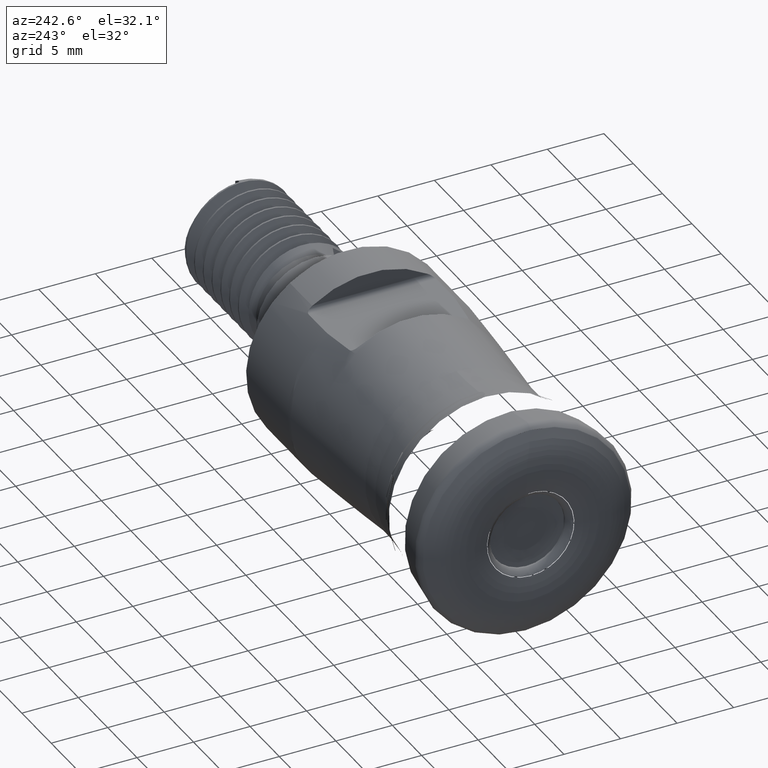
[diagram: clean part render]
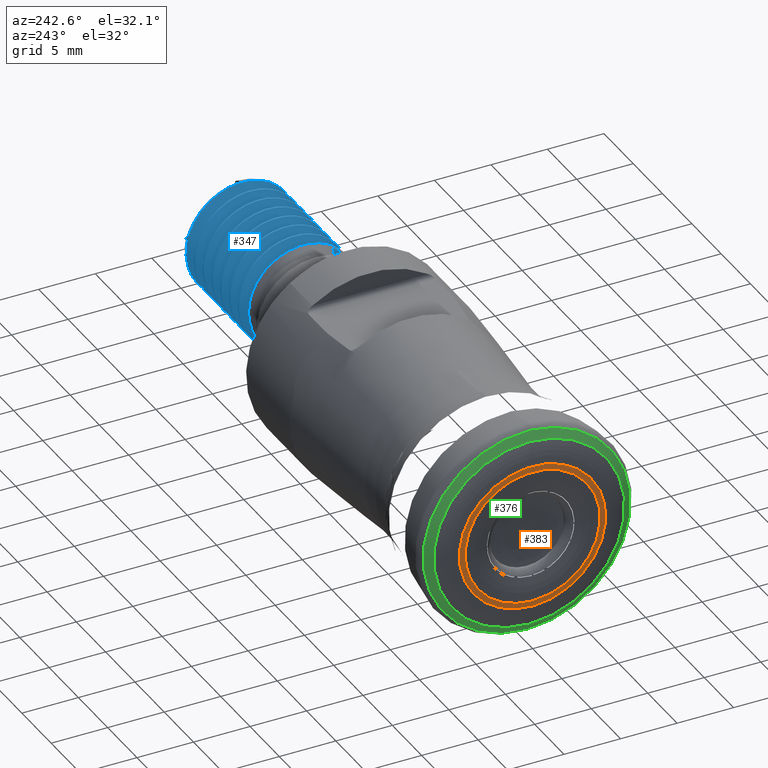
[diagram: same view with three faces highlighted in distinct colors, each labeled with its STEP entity id]
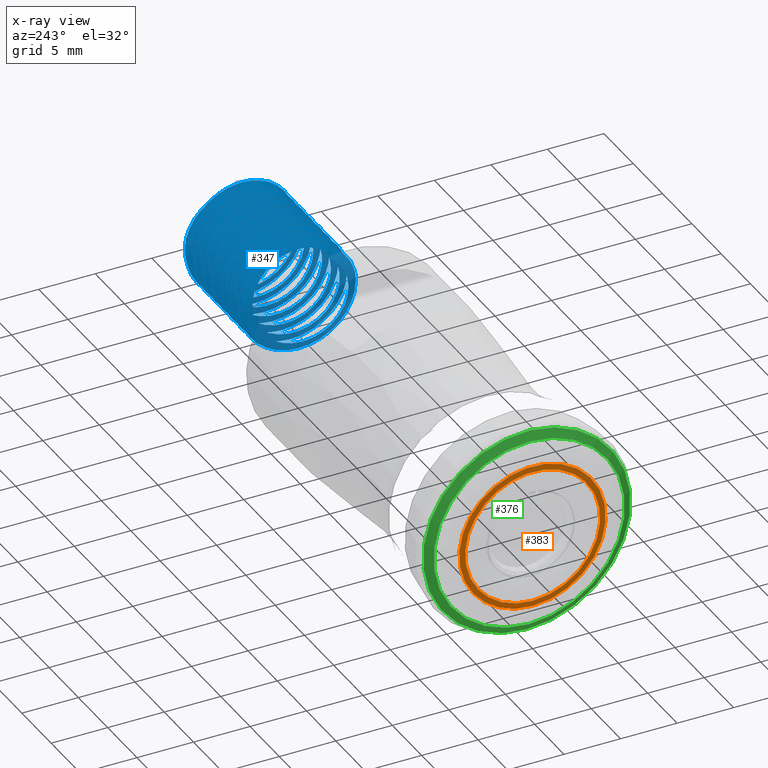
[diagram: x-ray of the same camera — body ghosted, the three highlighted faces saturated]
A machine part, auxiliary view with three faces highlighted in distinct colors.
The next image is the same camera in x-ray (body ghosted, the three faces saturated) — at least one of them is partly hidden behind the body in this view.
Their STEP definitions:

[orange] entity #383 — the highlighted face is a SurfaceOfRevolution surface.
#124=SURFACE_OF_REVOLUTION('',#313,#157);
#157=AXIS1_PLACEMENT('',#3709,#1446);
#313=B_SPLINE_CURVE_WITH_KNOTS('',3,(#3705,#3706,#3707,#3708),
 .UNSPECIFIED.,.F.,.F.,(4,4),(0.,1.),.UNSPECIFIED.);
#383=ADVANCED_FACE('',(#487,#488),#124,.T.);
#487=FACE_BOUND('',#612,.T.);
#488=FACE_BOUND('',#613,.T.);
#612=EDGE_LOOP('',(#834));
#613=EDGE_LOOP('',(#835));
#834=ORIENTED_EDGE('',*,*,#1051,.F.);
#835=ORIENTED_EDGE('',*,*,#1052,.T.);
#940=VERTEX_POINT('',#3697);
#941=VERTEX_POINT('',#3704);
#1051=EDGE_CURVE('',#940,#940,#1115,.T.);
#1052=EDGE_CURVE('',#941,#941,#1116,.T.);
#1115=CIRCLE('',#1214,6.47521850806742);
#1116=CIRCLE('',#1215,5.97397400946857);
#1214=AXIS2_PLACEMENT_3D('',#3696,#1441,#1442);
#1215=AXIS2_PLACEMENT_3D('',#3703,#1444,#1445);
#1441=DIRECTION('',(1.,0.,0.));
#1442=DIRECTION('',(0.,0.,-1.));
#1444=DIRECTION('',(1.,0.,0.));
#1445=DIRECTION('',(0.,0.,-1.));
#1446=DIRECTION('',(1.,0.,0.));
#3696=CARTESIAN_POINT('',(0.0317858661389066,0.,0.));
#3697=CARTESIAN_POINT('',(0.0317858661389066,0.,-6.47521850806742));
#3703=CARTESIAN_POINT('',(4.33680868994202E-15,0.,0.));
#3704=CARTESIAN_POINT('',(4.33680868994202E-15,0.,-5.97397400946857));
#3705=CARTESIAN_POINT('',(4.33680868994202E-15,-5.46211820008518,2.41942766664028));
#3706=CARTESIAN_POINT('',(0.000668666123622266,-5.62553754101259,2.46552760350264));
#3707=CARTESIAN_POINT('',(0.0111289646775623,-5.79084543988172,2.50625493584193));
#3708=CARTESIAN_POINT('',(0.0317858661389066,-5.95570728411855,2.54126060708385));
#3709=CARTESIAN_POINT('',(0.,0.,0.));

[blue] entity #347 — the highlighted face is a freeform B-spline surface patch.
#169=B_SPLINE_SURFACE_WITH_KNOTS('',1,3,((#2552,#2553,#2554,#2555,#2556,
#2557,#2558,#2559,#2560,#2561,#2562,#2563,#2564,#2565,#2566,#2567,#2568,
#2569,#2570,#2571,#2572,#2573,#2574,#2575,#2576,#2577,#2578,#2579,#2580,
#2581,#2582,#2583,#2584,#2585,#2586,#2587,#2588,#2589,#2590,#2591,#2592,
#2593,#2594,#2595,#2596,#2597,#2598,#2599,#2600,#2601,#2602,#2603,#2604,
#2605,#2606,#2607,#2608,#2609,#2610,#2611,#2612,#2613,#2614,#2615,#2616,
#2617,#2618,#2619,#2620,#2621,#2622,#2623,#2624,#2625,#2626,#2627,#2628,
#2629,#2630,#2631,#2632,#2633,#2634,#2635,#2636,#2637,#2638,#2639,#2640,
#2641,#2642,#2643,#2644,#2645,#2646,#2647,#2648,#2649,#2650,#2651,#2652,
#2653,#2654,#2655,#2656,#2657,#2658,#2659,#2660,#2661,#2662,#2663,#2664,
#2665,#2666,#2667,#2668,#2669,#2670,#2671,#2672,#2673,#2674,#2675,#2676,
#2677,#2678,#2679,#2680,#2681),(#2682,#2683,#2684,#2685,#2686,#2687,#2688,
#2689,#2690,#2691,#2692,#2693,#2694,#2695,#2696,#2697,#2698,#2699,#2700,
#2701,#2702,#2703,#2704,#2705,#2706,#2707,#2708,#2709,#2710,#2711,#2712,
#2713,#2714,#2715,#2716,#2717,#2718,#2719,#2720,#2721,#2722,#2723,#2724,
#2725,#2726,#2727,#2728,#2729,#2730,#2731,#2732,#2733,#2734,#2735,#2736,
#2737,#2738,#2739,#2740,#2741,#2742,#2743,#2744,#2745,#2746,#2747,#2748,
#2749,#2750,#2751,#2752,#2753,#2754,#2755,#2756,#2757,#2758,#2759,#2760,
#2761,#2762,#2763,#2764,#2765,#2766,#2767,#2768,#2769,#2770,#2771,#2772,
#2773,#2774,#2775,#2776,#2777,#2778,#2779,#2780,#2781,#2782,#2783,#2784,
#2785,#2786,#2787,#2788,#2789,#2790,#2791,#2792,#2793,#2794,#2795,#2796,
#2797,#2798,#2799,#2800,#2801,#2802,#2803,#2804,#2805,#2806,#2807,#2808,
#2809,#2810,#2811)),.UNSPECIFIED.,.F.,.F.,.F.,(2,2),(4,1,1,1,1,1,1,1,1,
1,1,1,1,1,1,1,1,1,1,1,1,1,1,1,1,1,1,1,1,1,1,1,1,1,1,1,1,1,1,1,1,1,1,1,1,
1,1,1,1,1,1,1,1,1,1,1,1,1,1,1,1,1,1,1,1,1,1,1,1,1,1,1,1,1,1,1,1,1,1,1,1,
1,1,1,1,1,1,1,1,1,1,1,1,1,1,1,1,1,1,1,1,1,1,1,1,1,1,1,1,1,1,1,1,1,1,1,1,
1,1,1,1,1,1,1,1,1,1,4),(0.,1.),(0.,0.00790895939992761,0.0158179187998552,
0.0237268781997828,0.0316358375997104,0.039544796999638,0.0474537563995657,
0.0553627157994933,0.0632716751994209,0.0711806345993485,0.0790895939992761,
0.0869985533992037,0.0949075127991313,0.102816472199059,0.110725431598987,
0.118634390998914,0.126543350398842,0.134452309798769,0.142361269198697,
0.150270228598625,0.158179187998552,0.16608814739848,0.173997106798407,
0.181906066198335,0.189815025598263,0.19772398499819,0.205632944398118,
0.213541903798045,0.221450863197973,0.229359822597901,0.237268781997828,
0.245177741397756,0.253086700797684,0.260995660197611,0.268904619597539,
0.276813578997466,0.284722538397394,0.292631497797322,0.300540457197249,
0.308449416597177,0.316358375997104,0.324267335397032,0.33217629479696,
0.340085254196887,0.347994213596815,0.355903172996742,0.36381213239667,
0.371721091796598,0.379630051196525,0.387539010596453,0.39544796999638,
0.403356929396308,0.411265888796236,0.419174848196163,0.427083807596091,
0.434992766996019,0.442901726395946,0.450810685795874,0.458719645195801,
0.466628604595729,0.474537563995657,0.482446523395584,0.490355482795512,
0.498264442195439,0.506173401595367,0.514082360995295,0.521991320395222,
0.52990027979515,0.537809239195078,0.545718198595005,0.553627157994933,
0.56153611739486,0.569445076794788,0.577354036194715,0.585262995594643,
0.593171954994571,0.601080914394498,0.608989873794426,0.616898833194354,
0.624807792594281,0.632716751994209,0.640625711394136,0.648534670794064,
0.656443630193992,0.664352589593919,0.672261548993847,0.680170508393774,
0.688079467793702,0.69598842719363,0.703897386593557,0.711806345993485,
0.719715305393412,0.72762426479334,0.735533224193268,0.743442183593195,
0.751351142993123,0.759260102393051,0.767169061792978,0.775078021192906,
0.782986980592833,0.790895939992761,0.798804899392689,0.806713858792616,
0.814622818192544,0.822531777592471,0.830440736992399,0.838349696392327,
0.846258655792254,0.854167615192182,0.862076574592109,0.869985533992037,
0.877894493391965,0.885803452791892,0.89371241219182,0.901621371591747,
0.909530330991675,0.917439290391603,0.92534824979153,0.933257209191458,
0.941166168591386,0.949075127991313,0.956984087391241,0.964893046791168,
0.972802006191096,0.980710965591024,0.988619924990951,0.996528884390879,
1.),.UNSPECIFIED.);
#251=FACE_OUTER_BOUND('',#555,.T.);
#283=B_SPLINE_CURVE_WITH_KNOTS('',3,(#1753,#1754,#1755,#1756),
 .UNSPECIFIED.,.F.,.F.,(4,4),(0.,1.),.UNSPECIFIED.);
#286=B_SPLINE_CURVE_WITH_KNOTS('',3,(#1912,#1913,#1914,#1915,#1916,#1917,
#1918,#1919,#1920,#1921,#1922,#1923,#1924,#1925,#1926,#1927,#1928,#1929,
#1930,#1931,#1932,#1933,#1934,#1935,#1936,#1937,#1938,#1939,#1940,#1941,
#1942,#1943,#1944,#1945,#1946,#1947,#1948,#1949,#1950,#1951,#1952,#1953,
#1954,#1955,#1956,#1957,#1958,#1959,#1960,#1961,#1962,#1963,#1964,#1965,
#1966,#1967,#1968,#1969,#1970,#1971,#1972,#1973,#1974,#1975,#1976,#1977,
#1978,#1979,#1980,#1981,#1982,#1983,#1984,#1985,#1986,#1987,#1988,#1989,
#1990,#1991,#1992,#1993,#1994,#1995,#1996,#1997,#1998,#1999,#2000,#2001,
#2002,#2003,#2004,#2005,#2006,#2007,#2008,#2009,#2010,#2011,#2012,#2013,
#2014,#2015,#2016,#2017,#2018,#2019,#2020,#2021,#2022,#2023,#2024,#2025,
#2026,#2027,#2028,#2029,#2030,#2031,#2032,#2033,#2034,#2035,#2036,#2037,
#2038,#2039,#2040,#2041),.UNSPECIFIED.,.F.,.F.,(4,2,2,2,2,2,2,2,2,2,2,2,
2,2,2,2,2,2,2,2,2,2,2,2,2,2,2,2,2,2,2,2,2,2,2,2,2,2,2,2,2,2,2,2,2,2,2,2,
2,2,2,2,2,2,2,2,2,2,2,2,2,2,2,2,4),(0.,0.015625,0.03125,0.046875,0.0625,
0.078125,0.09375,0.109375,0.125,0.140625,0.15625,0.171875,0.1875,0.203125,
0.21875,0.234375,0.25,0.265625,0.28125,0.296875,0.3125,0.328125,0.34375,
0.359375,0.375,0.390625,0.40625,0.421875,0.4375,0.453125,0.46875,0.484375,
0.5,0.515625,0.53125,0.546875,0.5625,0.578125,0.59375,0.609375,0.625,0.640625,
0.65625,0.671875,0.6875,0.703125,0.71875,0.734375,0.75,0.765625,0.78125,
0.796875,0.8125,0.828125,0.84375,0.859375,0.875,0.890625,0.90625,0.921875,
0.9375,0.953125,0.96875,0.984375,1.),.UNSPECIFIED.);
#287=B_SPLINE_CURVE_WITH_KNOTS('',3,(#2050,#2051,#2052,#2053,#2054,#2055),
 .UNSPECIFIED.,.F.,.F.,(4,2,4),(0.,0.5,1.),.UNSPECIFIED.);
#288=B_SPLINE_CURVE_WITH_KNOTS('',3,(#2064,#2065,#2066,#2067,#2068,#2069,
#2070,#2071,#2072,#2073),.UNSPECIFIED.,.F.,.F.,(4,2,2,2,4),(0.,0.25,0.5,
0.75,1.),.UNSPECIFIED.);
#291=B_SPLINE_CURVE_WITH_KNOTS('',1,(#2110,#2111),.UNSPECIFIED.,.F.,.F.,
(2,2),(0.,1.),.UNSPECIFIED.);
#292=B_SPLINE_CURVE_WITH_KNOTS('',3,(#2113,#2114,#2115,#2116,#2117,#2118,
#2119,#2120,#2121,#2122,#2123,#2124,#2125,#2126,#2127,#2128,#2129,#2130,
#2131,#2132,#2133,#2134,#2135,#2136,#2137,#2138,#2139,#2140,#2141,#2142,
#2143,#2144,#2145,#2146,#2147,#2148,#2149,#2150,#2151,#2152,#2153,#2154,
#2155,#2156,#2157,#2158,#2159,#2160,#2161,#2162,#2163,#2164,#2165,#2166,
#2167,#2168,#2169,#2170,#2171,#2172,#2173,#2174,#2175,#2176,#2177,#2178,
#2179,#2180,#2181,#2182,#2183,#2184,#2185,#2186,#2187,#2188,#2189,#2190,
#2191,#2192,#2193,#2194,#2195,#2196,#2197,#2198,#2199,#2200,#2201,#2202,
#2203,#2204,#2205,#2206,#2207,#2208,#2209,#2210,#2211,#2212,#2213,#2214,
#2215,#2216,#2217,#2218,#2219,#2220,#2221,#2222,#2223,#2224,#2225,#2226,
#2227,#2228,#2229,#2230,#2231,#2232,#2233,#2234,#2235,#2236,#2237,#2238,
#2239,#2240,#2241,#2242,#2243,#2244,#2245,#2246,#2247,#2248,#2249,#2250,
#2251,#2252,#2253,#2254,#2255,#2256,#2257,#2258,#2259,#2260,#2261,#2262,
#2263,#2264,#2265,#2266,#2267,#2268,#2269,#2270,#2271,#2272,#2273,#2274,
#2275,#2276,#2277,#2278,#2279,#2280,#2281,#2282,#2283,#2284,#2285,#2286,
#2287,#2288,#2289,#2290,#2291,#2292,#2293,#2294,#2295,#2296,#2297,#2298,
#2299,#2300,#2301,#2302,#2303,#2304,#2305,#2306,#2307,#2308,#2309,#2310,
#2311,#2312,#2313,#2314,#2315,#2316,#2317,#2318,#2319,#2320,#2321,#2322,
#2323,#2324,#2325,#2326,#2327,#2328,#2329,#2330,#2331,#2332,#2333,#2334,
#2335,#2336,#2337,#2338,#2339,#2340,#2341,#2342,#2343,#2344,#2345,#2346,
#2347,#2348,#2349,#2350,#2351,#2352,#2353,#2354,#2355,#2356,#2357,#2358,
#2359,#2360,#2361,#2362,#2363,#2364,#2365,#2366,#2367,#2368,#2369,#2370,
#2371,#2372,#2373,#2374,#2375,#2376,#2377,#2378,#2379,#2380,#2381,#2382,
#2383,#2384,#2385,#2386,#2387,#2388,#2389,#2390,#2391,#2392,#2393,#2394,
#2395,#2396,#2397,#2398,#2399,#2400,#2401,#2402,#2403,#2404,#2405,#2406,
#2407,#2408,#2409,#2410,#2411,#2412,#2413,#2414,#2415,#2416,#2417,#2418,
#2419,#2420,#2421,#2422,#2423,#2424,#2425,#2426,#2427,#2428,#2429,#2430,
#2431,#2432,#2433,#2434,#2435,#2436,#2437,#2438,#2439,#2440,#2441,#2442,
#2443,#2444,#2445,#2446,#2447,#2448,#2449,#2450,#2451,#2452,#2453,#2454,
#2455,#2456,#2457,#2458,#2459,#2460,#2461,#2462,#2463,#2464,#2465,#2466,
#2467,#2468,#2469,#2470,#2471,#2472,#2473,#2474,#2475,#2476,#2477,#2478,
#2479,#2480,#2481,#2482,#2483,#2484,#2485,#2486,#2487,#2488,#2489,#2490,
#2491,#2492,#2493,#2494,#2495,#2496,#2497,#2498,#2499,#2500,#2501,#2502,
#2503,#2504,#2505,#2506,#2507,#2508,#2509,#2510,#2511,#2512,#2513,#2514,
#2515,#2516,#2517,#2518,#2519,#2520,#2521,#2522,#2523,#2524,#2525,#2526,
#2527,#2528,#2529,#2530,#2531,#2532,#2533,#2534,#2535,#2536,#2537,#2538,
#2539,#2540,#2541,#2542,#2543,#2544,#2545,#2546,#2547,#2548,#2549,#2550,
#2551),.UNSPECIFIED.,.F.,.F.,(4,3,3,3,3,3,3,3,3,3,3,3,3,3,3,3,3,3,3,3,3,
3,3,3,3,3,3,3,3,3,3,3,3,3,3,3,3,3,3,3,3,3,3,3,3,3,3,3,3,3,3,3,3,3,3,3,3,
3,3,3,3,3,3,3,3,3,3,3,3,3,3,3,3,3,3,3,3,3,3,3,3,3,3,3,3,3,3,3,3,3,3,3,3,
3,3,3,3,3,3,3,3,3,3,3,3,3,3,3,3,3,3,3,3,3,3,3,3,3,3,3,3,3,3,3,3,3,3,3,3,
3,3,3,3,3,3,3,3,3,3,3,3,3,3,3,3,3,4),(0.,0.000954686008691589,0.00784358136823768,
0.0147335961455769,0.0216217318365425,0.0285159425988177,0.0354046285098073,
0.042297734756344,0.0491844493137792,0.0560730072139966,0.0629635557463817,
0.0698521502192506,0.0767464912774764,0.0836344714727598,0.090526828387836,
0.0974148562352675,0.104304454331066,0.111193739771263,0.118081775671793,
0.124975592271907,0.131864471536759,0.138758201518492,0.145644806441604,
0.152533718954325,0.159423738170536,0.166312268701103,0.173205946183631,
0.18009417275223,0.18698715941356,0.19387509815528,0.200765151747582,0.207653797514697,
0.214541757515923,0.221435076287067,0.228324039985074,0.235218324686541,
0.242104932246777,0.248994282076526,0.255883811625584,0.262772330131938,
0.269665266586906,0.276553616182942,0.283447175148072,0.290335116698592,
0.297225702256384,0.304113778727116,0.311001713140111,0.317894477922054,
0.324783432381041,0.331678167085474,0.338564893014132,0.345454760241257,
0.352343852430028,0.359232428673454,0.36612459080005,0.37301295500746,0.379906987193526,
0.386795022601758,0.393686205791257,0.40057379436867,0.407461769785617,
0.414353956066907,0.421242831658504,0.428137847009123,0.435024799182737,
0.441915252358996,0.448803967611928,0.45569268142811,0.462584065890448,
0.469472375891673,0.476366696390501,0.483254907325465,0.490146737134511,
0.497033928774412,0.503922023522765,0.510813629365341,0.517702402014157,
0.524597451985667,0.531484721615348,0.53837581346533,0.545264220903087,
0.552153159181119,0.559043785669567,0.565932007363662,0.572826385626182,
0.57971483273186,0.586607334551109,0.593494227397568,0.60038252599012,0.607273564179973,
0.614162233616313,0.621057037681418,0.627944682297896,0.634836439506804,
0.641724611543765,0.648613859317491,0.655503759859764,0.662391879926282,
0.669286051185936,0.676174755322832,0.683067919708718,0.689954612113364,
0.696843195375907,0.70373368325464,0.710622263220531,0.717516536597765,
0.724404540916282,0.731296955991478,0.738184964539594,0.745074598130478,
0.75196381046965,0.75885183070043,0.765745594829362,0.772634480672495,0.779528263195784,
0.786414856710608,0.793303802679405,0.800193764454764,0.807082284605236,
0.81397588419342,0.820864121876369,0.827757162355637,0.834645090689432,
0.841535187607312,0.848423766625301,0.855311714990931,0.862204973818912,
0.869093934106874,0.875988262677613,0.882874870432487,0.889764262008118,
0.896653738879462,0.903542253327501,0.910435106856408,0.917323456029154,
0.924217061156836,0.9311050016291,0.937995637724487,0.944883655182299,0.95177158402647,
0.958664285233826,0.965553227615776,0.972447993305582,0.979334806297559,
0.986224737084195,0.993114074960175,1.),.UNSPECIFIED.);
#347=ADVANCED_FACE('',(#251),#169,.F.);
#555=EDGE_LOOP('',(#725,#726,#727,#728,#729,#730));
#725=ORIENTED_EDGE('',*,*,#1007,.T.);
#726=ORIENTED_EDGE('',*,*,#1011,.T.);
#727=ORIENTED_EDGE('',*,*,#1003,.T.);
#728=ORIENTED_EDGE('',*,*,#998,.T.);
#729=ORIENTED_EDGE('',*,*,#1016,.T.);
#730=ORIENTED_EDGE('',*,*,#1017,.F.);
#903=VERTEX_POINT('',#1752);
#904=VERTEX_POINT('',#1757);
#908=VERTEX_POINT('',#2042);
#911=VERTEX_POINT('',#2049);
#912=VERTEX_POINT('',#2056);
#917=VERTEX_POINT('',#2112);
#998=EDGE_CURVE('',#904,#903,#283,.T.);
#1003=EDGE_CURVE('',#908,#904,#286,.T.);
#1007=EDGE_CURVE('',#912,#911,#287,.T.);
#1011=EDGE_CURVE('',#911,#908,#288,.T.);
#1016=EDGE_CURVE('',#903,#917,#291,.T.);
#1017=EDGE_CURVE('',#912,#917,#292,.T.);
#1752=CARTESIAN_POINT('',(39.4867390613101,-2.78240175596195,3.95050941503302));
#1753=CARTESIAN_POINT('',(39.75,-4.85892849189302,1.10953589877488));
#1754=CARTESIAN_POINT('',(39.668508861623,-4.54411780008608,2.27682644872613));
#1755=CARTESIAN_POINT('',(39.5709506573911,-3.79774502024022,3.29485657156489));
#1756=CARTESIAN_POINT('',(39.4867390613101,-2.78240175596196,3.95050941503305));
#1757=CARTESIAN_POINT('',(39.75,-4.85892849189302,1.10953589877488));
#1912=CARTESIAN_POINT('',(50.25,-4.85886522550107,1.10981292135945));
#1913=CARTESIAN_POINT('',(50.1981217645148,-4.60217247898969,2.23363787929445));
#1914=CARTESIAN_POINT('',(50.1368279699958,-3.9519402282417,3.24471322345219));
#1915=CARTESIAN_POINT('',(50.033065990037,-2.14368006272164,4.64226574624184));
#1916=CARTESIAN_POINT('',(49.9729243909726,-0.99523724582699,5.01520065200931));
#1917=CARTESIAN_POINT('',(49.8655249124369,1.28631321888171,4.9485485809807));
#1918=CARTESIAN_POINT('',(49.8130235304743,2.41313391525527,4.50738394957922));
#1919=CARTESIAN_POINT('',(49.6995172139717,4.13256996301102,3.01024764142399));
#1920=CARTESIAN_POINT('',(49.6509144861754,4.72491768653932,1.95254527811927));
#1921=CARTESIAN_POINT('',(49.5347657993926,5.1040360617723,-0.293421348585722));
#1922=CARTESIAN_POINT('',(49.4871549847418,4.89076933188241,-1.48858682079848));
#1923=CARTESIAN_POINT('',(49.373875718442,3.75985826978963,-3.46395455683688));
#1924=CARTESIAN_POINT('',(49.3223085202308,2.83592824302457,-4.2534172442294));
#1925=CARTESIAN_POINT('',(49.2115939109518,0.70981852304992,-5.06262826182484));
#1926=CARTESIAN_POINT('',(49.1550990134969,-0.506119250469942,-5.08693863371857));
#1927=CARTESIAN_POINT('',(49.0500219675067,-2.66225231428527,-4.36411663157592));
#1928=CARTESIAN_POINT('',(48.989553458069,-3.61823021002066,-3.61119454265238));
#1929=CARTESIAN_POINT('',(48.8861732099749,-4.82618765266134,-1.68529778344589));
#1930=CARTESIAN_POINT('',(48.8231344849837,-5.08777034888609,-0.496394173371933));
#1931=CARTESIAN_POINT('',(48.7205865710754,-4.80003686004219,1.75825494186661));
#1932=CARTESIAN_POINT('',(48.6611633663818,-4.24792798952973,2.84367984359532));
#1933=CARTESIAN_POINT('',(48.5540984667399,-2.59557003110978,4.40391002073217));
#1934=CARTESIAN_POINT('',(48.5000263698958,-1.48005623718889,4.89292145759063));
#1935=CARTESIAN_POINT('',(48.3863442291111,0.786878084763124,5.05094740965614));
#1936=CARTESIAN_POINT('',(48.3385204618621,1.95946873787798,4.72146397014241));
#1937=CARTESIAN_POINT('',(48.2236042734279,3.8125183034186,3.40535518590532));
#1938=CARTESIAN_POINT('',(48.1750502558611,4.50968249505511,2.40736306014961));
#1939=CARTESIAN_POINT('',(48.0606535341972,5.10753927440614,0.213718670167266));
#1940=CARTESIAN_POINT('',(48.009306481098,5.01358673918133,-0.999040631296858));
#1941=CARTESIAN_POINT('',(47.89998105173,4.08370936288119,-3.07529706106472));
#1942=CARTESIAN_POINT('',(47.8436919064282,3.24274097669467,-3.95228151860765));
#1943=CARTESIAN_POINT('',(47.7372286305715,1.20545664898567,-4.96817597430672));
#1944=CARTESIAN_POINT('',(47.6762623738778,0.000660306807838926,-5.11253790089375));
#1945=CARTESIAN_POINT('',(47.5737262638213,-2.22053228698523,-4.60513632659625));
#1946=CARTESIAN_POINT('',(47.5119662694128,-3.24200776956359,-3.95344106766701));
#1947=CARTESIAN_POINT('',(47.408411977247,-4.63844449019924,-2.15061464813367));
#1948=CARTESIAN_POINT('',(47.3482193752381,-5.01411517463189,-1.00073032034058));
#1949=CARTESIAN_POINT('',(47.2407407085179,-4.94994503215732,1.28095914733603));
#1950=CARTESIAN_POINT('',(47.1884380552592,-4.51163908362478,2.40638010921017));
#1951=CARTESIAN_POINT('',(47.07463405045,-3.01299545521799,4.13127230253935));
#1952=CARTESIAN_POINT('',(47.0264335935662,-1.96237707260658,4.7220628604871));
#1953=CARTESIAN_POINT('',(46.9097692114844,0.293150109717834,5.10518015809981));
#1954=CARTESIAN_POINT('',(46.8627555688464,1.4772913173405,4.89595333060326));
#1955=CARTESIAN_POINT('',(46.7487560955333,3.46685958069809,3.75947247622012));
#1956=CARTESIAN_POINT('',(46.6979937230445,4.24731774622678,2.84910506015075));
#1957=CARTESIAN_POINT('',(46.5863362268056,5.06559886383092,0.704851638250513));
#1958=CARTESIAN_POINT('',(46.5308434899527,5.09132954168826,-0.490263908727717));
#1959=CARTESIAN_POINT('',(46.4246280114749,4.36213453806346,-2.67091322848618));
#1960=CARTESIAN_POINT('',(46.3653786334018,3.62629314502997,-3.60791693781808));
#1961=CARTESIAN_POINT('',(46.2606287289596,1.67542757439772,-4.83321932533934));
#1962=CARTESIAN_POINT('',(46.1989154907479,0.513518304258614,-5.08941641001069));
#1963=CARTESIAN_POINT('',(46.0950143198398,-1.77078942773278,-4.79897543710369));
#1964=CARTESIAN_POINT('',(46.0368520982102,-2.83352557077035,-4.25814984536359));
#1965=CARTESIAN_POINT('',(45.9285589114131,-4.4118902195271,-2.58764989065765));
#1966=CARTESIAN_POINT('',(45.8756176398449,-4.89188526146143,-1.49174228438464));
#1967=CARTESIAN_POINT('',(45.7608490203564,-5.05184989486269,0.796648664155295));
#1968=CARTESIAN_POINT('',(45.713986971871,-4.7267160205474,1.95187819180214));
#1969=CARTESIAN_POINT('',(45.598187645843,-3.40067438837827,3.81930445483996));
#1970=CARTESIAN_POINT('',(45.5503945960387,-2.41396574699192,4.50785756745447));
#1971=CARTESIAN_POINT('',(45.435319953092,-0.207322296718288,5.10930797088904));
#1972=CARTESIAN_POINT('',(45.3845257474927,0.994914502097514,5.01548814005224));
#1973=CARTESIAN_POINT('',(45.2747413213313,3.07981182577334,4.08163389677656));
#1974=CARTESIAN_POINT('',(45.2188029240121,3.9513202952086,3.2448759185513));
#1975=CARTESIAN_POINT('',(45.1120798125931,4.96949786207467,1.20259835396394));
#1976=CARTESIAN_POINT('',(45.0512758377674,5.11270658584198,0.00091263346451958));
#1977=CARTESIAN_POINT('',(44.9486701904385,4.6047567454998,-2.22170762716113));
#1978=CARTESIAN_POINT('',(44.8868875900663,3.95215255839123,-3.24314370983842));
#1979=CARTESIAN_POINT('',(44.7834473253219,2.15114874843708,-4.63789284369102));
#1980=CARTESIAN_POINT('',(44.7230455964148,0.997095848820807,-5.01410074892983));
#1981=CARTESIAN_POINT('',(44.6158782898976,-1.27809313820001,-4.94993781599733));
#1982=CARTESIAN_POINT('',(44.5631691082032,-2.41046858342507,-4.50812826200199));
#1983=CARTESIAN_POINT('',(44.4498893603017,-4.12739052176219,-3.01632668973505));
#1984=CARTESIAN_POINT('',(44.4010744465994,-4.72319927866626,-1.95542593267084));
#1985=CARTESIAN_POINT('',(44.2851478793548,-5.10397962746201,0.285821564280653));
#1986=CARTESIAN_POINT('',(44.2373230714706,-4.89154517943693,1.48474159032327));
#1987=CARTESIAN_POINT('',(44.124246331753,-3.76445618683728,3.45840157441135));
#1988=CARTESIAN_POINT('',(44.0724935601267,-2.83950455789525,4.25071196371439));
#1989=CARTESIAN_POINT('',(43.9619437898912,-0.716514641267283,5.0614173016678));
#1990=CARTESIAN_POINT('',(43.9053023479937,0.501110189487963,5.08728114867546));
#1991=CARTESIAN_POINT('',(43.8003309861276,2.65674404699938,4.36729343832204));
#1992=CARTESIAN_POINT('',(43.739787701447,3.61429920640186,3.61507015522016));
#1993=CARTESIAN_POINT('',(43.6364445551582,4.82420522448245,1.6908385294394));
#1994=CARTESIAN_POINT('',(43.5734117908815,5.08725213534644,0.502376535670701));
#1995=CARTESIAN_POINT('',(43.4708110676076,4.80195672864467,-1.75320507882093));
#1996=CARTESIAN_POINT('',(43.4114977675986,4.25167432597294,-2.83840119914246));
#1997=CARTESIAN_POINT('',(43.304285806528,2.59986898249387,-4.40158348952932));
#1998=CARTESIAN_POINT('',(43.2503910290283,1.48673852762612,-4.89120123522725));
#1999=CARTESIAN_POINT('',(43.1365269421507,-0.782648063716598,-5.05190092751007));
#2000=CARTESIAN_POINT('',(43.0888827090633,-1.95288733938864,-4.72462642862471));
#2001=CARTESIAN_POINT('',(42.9737865093198,-3.81031629783456,-3.40842391155499));
#2002=CARTESIAN_POINT('',(42.9254168202254,-4.50651518261067,-2.414378080607));
#2003=CARTESIAN_POINT('',(42.8108189415405,-5.1079206165429,-0.216904546545439));
#2004=CARTESIAN_POINT('',(42.7596669828296,-5.01577103569538,0.991272360032103));
#2005=CARTESIAN_POINT('',(42.6501157368654,-4.08573294661823,3.07365682261417));
#2006=CARTESIAN_POINT('',(42.5940614422866,-3.24968118849305,3.94754231017769));
#2007=CARTESIAN_POINT('',(42.4873251732537,-1.20743475965849,4.96846248035115));
#2008=CARTESIAN_POINT('',(42.4266447068334,-0.00934126530448417,5.11338904581682));
#2009=CARTESIAN_POINT('',(42.3237760542358,2.2198506817159,4.60641918891479));
#2010=CARTESIAN_POINT('',(42.2623818230823,3.23567908213379,3.95988567693099));
#2011=CARTESIAN_POINT('',(42.1584135775721,4.63914492241643,2.15142931228039));
#2012=CARTESIAN_POINT('',(42.0986857317681,5.01337485695464,1.01000394739471));
#2013=CARTESIAN_POINT('',(41.990683481468,4.95092576768934,-1.28154963732489));
#2014=CARTESIAN_POINT('',(41.9389276831056,4.51716012001513,-2.39859325757234));
#2015=CARTESIAN_POINT('',(41.8245500358453,3.01281251039287,-4.13291010576649));
#2016=CARTESIAN_POINT('',(41.7769309837612,1.97184201083044,-4.71956715177451));
#2017=CARTESIAN_POINT('',(41.6596581914936,-0.295145670314822,-5.1064042191232));
#2018=CARTESIAN_POINT('',(41.613241054521,-1.46822511493742,-4.90020838667681));
#2019=CARTESIAN_POINT('',(41.4986153203902,-3.46990796422533,-3.75865214415971));
#2020=CARTESIAN_POINT('',(41.4482864986762,-4.24437803171689,-2.85474074121926));
#2021=CARTESIAN_POINT('',(41.3363536732767,-5.06626292042049,-0.70517345162057));
#2022=CARTESIAN_POINT('',(41.2809320586773,-5.09133426550765,0.487968743785353));
#2023=CARTESIAN_POINT('',(41.174828985938,-4.36411595460331,2.66726264788841));
#2024=CARTESIAN_POINT('',(41.115292672856,-3.62439984554579,3.60821034904957));
#2025=CARTESIAN_POINT('',(41.0110140234581,-1.68289484177328,4.82942244113244));
#2026=CARTESIAN_POINT('',(40.948803742831,-0.510985651907118,5.08825903908749));
#2027=CARTESIAN_POINT('',(40.8454510742864,1.76111161663701,4.80103866460755));
#2028=CARTESIAN_POINT('',(40.7867916379258,2.83412007484452,4.2562146036634));
#2029=CARTESIAN_POINT('',(40.6789872921169,4.40593232579909,2.59525715326112));
#2030=CARTESIAN_POINT('',(40.6255875204035,4.89099452355436,1.490688887167));
#2031=CARTESIAN_POINT('',(40.5112986217177,5.05215254079128,-0.787232806949859));
#2032=CARTESIAN_POINT('',(40.463975266482,4.72576759082504,-1.95145584516591));
#2033=CARTESIAN_POINT('',(40.3486482334633,3.40675989545233,-3.81248557411857));
#2034=CARTESIAN_POINT('',(40.3004073476771,2.41419779432086,-4.5066898899066));
#2035=CARTESIAN_POINT('',(40.1857751928352,0.216064287167519,-5.10802515437237));
#2036=CARTESIAN_POINT('',(40.134563679674,-0.993327254626409,-5.01498141382499));
#2037=CARTESIAN_POINT('',(40.0251698271776,-3.07253734011904,-4.08610473548684));
#2038=CARTESIAN_POINT('',(39.9688734257291,-3.94942639121267,-3.24609311734468));
#2039=CARTESIAN_POINT('',(39.8624800704628,-4.96689515539463,-1.21038913635119));
#2040=CARTESIAN_POINT('',(39.8019168510847,-5.11555785031267,-0.0143066942031694));
#2041=CARTESIAN_POINT('',(39.75,-4.85892849189302,1.1095358987749));
#2042=CARTESIAN_POINT('',(50.25,-4.85886522550107,1.10981292135945));
#2049=CARTESIAN_POINT('',(50.75,3.93315887821449,-2.56443694217947));
#2050=CARTESIAN_POINT('',(50.75,2.36155372883426,3.30744009557463));
#2051=CARTESIAN_POINT('',(50.75,3.34401278727552,2.75884534443908));
#2052=CARTESIAN_POINT('',(50.75,4.04867927201901,1.77314275408392));
#2053=CARTESIAN_POINT('',(50.75,4.62580084471011,-0.382175019208037));
#2054=CARTESIAN_POINT('',(50.75,4.45643671483493,-1.56916093387147));
#2055=CARTESIAN_POINT('',(50.75,3.9331588782145,-2.56443694217947));
#2056=CARTESIAN_POINT('',(50.750000000001,2.36155372883531,3.30744009557604));
#2064=CARTESIAN_POINT('',(50.75,3.93315887821449,-2.56443694217947));
#2065=CARTESIAN_POINT('',(50.7039316120752,3.3357182009976,-3.52944934617079));
#2066=CARTESIAN_POINT('',(50.6671179254602,2.38827394487619,-4.24919674201748));
#2067=CARTESIAN_POINT('',(50.5780052928842,0.243060486723032,-4.91845090860216));
#2068=CARTESIAN_POINT('',(50.5390832820965,-0.950806453907512,-4.85355496535234));
#2069=CARTESIAN_POINT('',(50.4556808061044,-3.01572978362598,-3.97902391022623));
#2070=CARTESIAN_POINT('',(50.4132835986974,-3.89204327063212,-3.16472567059343));
#2071=CARTESIAN_POINT('',(50.333470236849,-4.92278236775484,-1.17578335173768));
#2072=CARTESIAN_POINT('',(50.2883237710825,-5.08994021169356,-0.00122063130892729));
#2073=CARTESIAN_POINT('',(50.25,-4.85886522550108,1.10981292135939));
#2110=CARTESIAN_POINT('',(39.6302327356992,-2.92532188088625,4.15448995711639));
#2111=CARTESIAN_POINT('',(38.9428584725703,-2.24069507782783,3.17736692082863));
#2112=CARTESIAN_POINT('',(39.0442695289376,-2.34170079049379,3.32152576503642));
#2113=CARTESIAN_POINT('',(50.750000000001,2.36155372883531,3.30744009557604));
#2114=CARTESIAN_POINT('',(50.7459137351292,2.41344476691021,3.27038924328009));
#2115=CARTESIAN_POINT('',(50.7418320967863,2.46447800178444,3.23210611065799));
#2116=CARTESIAN_POINT('',(50.7377810207824,2.51456989058461,3.19265317022775));
#2117=CARTESIAN_POINT('',(50.7088568091452,2.87222015228992,2.91096376286262));
#2118=CARTESIAN_POINT('',(50.6838136365786,3.18631621004552,2.56339580751732));
#2119=CARTESIAN_POINT('',(50.6596023676685,3.43054627939411,2.17886397577619));
#2120=CARTESIAN_POINT('',(50.6353873856416,3.67481380463791,1.79427317101821));
#2121=CARTESIAN_POINT('',(50.6083572718829,3.85586138960295,1.36224935452216));
#2122=CARTESIAN_POINT('',(50.5788832728176,3.95878922581302,0.918740368976316));
#2123=CARTESIAN_POINT('',(50.5494166123788,4.06169143438619,0.475341811159911));
#2124=CARTESIAN_POINT('',(50.5194606686416,4.08943685720672,0.00804398461094633));
#2125=CARTESIAN_POINT('',(50.4950288264858,4.03959609802366,-0.444701433359514));
#2126=CARTESIAN_POINT('',(50.4705757291892,3.98971197852638,-0.897840729431108));
#2127=CARTESIAN_POINT('',(50.4473556223955,3.86067468758595,-1.34868517709757));
#2128=CARTESIAN_POINT('',(50.4198447027433,3.66338311175154,-1.75946587819531));
#2129=CARTESIAN_POINT('',(50.3923543638383,3.46623912851195,-2.16993927681792));
#2130=CARTESIAN_POINT('',(50.3606710515101,3.19558547385355,-2.55180675490073));
#2131=CARTESIAN_POINT('',(50.33380760466,2.87355560568441,-2.87380830624447));
#2132=CARTESIAN_POINT('',(50.3069279248541,2.55133114236085,-3.19600443563143));
#2133=CARTESIAN_POINT('',(50.2843019226583,2.16870746377633,-3.46705925965156));
#2134=CARTESIAN_POINT('',(50.2585047451426,1.75780656553138,-3.66417959141945));
#2135=CARTESIAN_POINT('',(50.2327307815435,1.34727542165939,-3.86112254196236));
#2136=CARTESIAN_POINT('',(50.2019327703769,0.897328719616808,-3.98974028022531));
#2137=CARTESIAN_POINT('',(50.1726700234877,0.444948957489188,-4.03956884150144));
#2138=CARTESIAN_POINT('',(50.1434008003423,-0.00753092262172859,-4.08940843053673));
#2139=CARTESIAN_POINT('',(50.1186091196121,-0.475172492071983,-4.06174986928349));
#2140=CARTESIAN_POINT('',(50.0946546603705,-0.918902428923977,-3.95875161207642));
#2141=CARTESIAN_POINT('',(50.0706935536241,-1.36275550347027,-3.85572477224091));
#2142=CARTESIAN_POINT('',(50.0439590269708,-1.79477988367275,-3.67453537938772));
#2143=CARTESIAN_POINT('',(50.0148878911349,-2.17914010938573,-3.43037088135763));
#2144=CARTESIAN_POINT('',(49.9858243016857,-2.56340056153276,-3.18626976439826));
#2145=CARTESIAN_POINT('',(49.9564543601962,-2.91081054019974,-2.87241363192984));
#2146=CARTESIAN_POINT('',(49.9318765494221,-3.1926495450931,-2.51457449327254));
#2147=CARTESIAN_POINT('',(49.9072785913952,-3.47471958283647,-2.15644202191602));
#2148=CARTESIAN_POINT('',(49.8832444011002,-3.69871289695471,-1.74449110220241));
#2149=CARTESIAN_POINT('',(49.8550108570593,-3.84596003505785,-1.31327354680502));
#2150=CARTESIAN_POINT('',(49.8268016800049,-3.99308009138141,-0.882428154120122));
#2151=CARTESIAN_POINT('',(49.7945721930577,-4.06775984068572,-0.420456711717524));
#2152=CARTESIAN_POINT('',(49.7679291242266,-4.06385021013907,0.0348922563419162));
#2153=CARTESIAN_POINT('',(49.7412701019308,-4.05993823856507,0.490513880443514));
#2154=CARTESIAN_POINT('',(49.7191094106425,-3.9771132148232,0.95201796680461));
#2155=CARTESIAN_POINT('',(49.6937058931645,-3.82229899874612,1.3806253525792));
#2156=CARTESIAN_POINT('',(49.6683178587286,-3.66757913948497,1.80897150893164));
#2157=CARTESIAN_POINT('',(49.6379613188235,-3.43681121026753,2.21622537848178));
#2158=CARTESIAN_POINT('',(49.6090996910636,-3.14905096094234,2.5689636130915));
#2159=CARTESIAN_POINT('',(49.5802325608365,-2.86123585014653,2.92176909722001));
#2160=CARTESIAN_POINT('',(49.5555989550909,-2.50826786717417,3.22989667437013));
#2161=CARTESIAN_POINT('',(49.53113800181,-2.11956494348066,3.4674977217538));
#2162=CARTESIAN_POINT('',(49.5066782775293,-1.73088154952307,3.70508683126558));
#2163=CARTESIAN_POINT('',(49.4789815769611,-1.29589846054519,3.87865810746932));
#2164=CARTESIAN_POINT('',(49.4493824362978,-0.850742659513954,3.97395683510568));
#2165=CARTESIAN_POINT('',(49.4197883067724,-0.405662223408876,4.06923942865695));
#2166=CARTESIAN_POINT('',(49.390532816025,0.0620784199466235,4.08897377853344));
#2167=CARTESIAN_POINT('',(49.3663070449821,0.513904568221801,4.03137669968471));
#2168=CARTESIAN_POINT('',(49.3420612032871,0.966105047015984,3.97373190260519));
#2169=CARTESIAN_POINT('',(49.3184416864725,1.4146222023222,3.83699909292139));
#2170=CARTESIAN_POINT('',(49.290620074207,1.82192325767433,3.63272509875787));
#2171=CARTESIAN_POINT('',(49.2628169083817,2.2289542620153,3.42858654347414));
#2172=CARTESIAN_POINT('',(49.2311306118233,2.60614625377553,3.15143156569983));
#2173=CARTESIAN_POINT('',(49.2047375271132,2.92261084419203,2.82390542572005));
#2174=CARTESIAN_POINT('',(49.1783266966685,3.2392882137011,2.49615906927066));
#2175=CARTESIAN_POINT('',(49.1556584357363,3.50376011448878,2.10890450412025));
#2176=CARTESIAN_POINT('',(49.1295315318114,3.69380886564582,1.69465986678046));
#2177=CARTESIAN_POINT('',(49.1034307129773,3.88366787220363,1.28082881112543));
#2178=CARTESIAN_POINT('',(49.0722432440217,4.00454396850362,0.828772693417744));
#2179=CARTESIAN_POINT('',(49.0432042236198,4.04660665964259,0.375593586388598));
#2180=CARTESIAN_POINT('',(49.0141569845758,4.08868125539115,-0.0777137796795447));
#2181=CARTESIAN_POINT('',(48.9900326028255,4.05299022435693,-0.544875266810431));
#2182=CARTESIAN_POINT('',(48.965975031864,3.94237790059392,-0.986788978915295));
#2183=CARTESIAN_POINT('',(48.9419138448546,3.83174895090216,-1.42876911423269));
#2184=CARTESIAN_POINT('',(48.914596545424,3.64319920453432,-1.85755459391223));
#2185=CARTESIAN_POINT('',(48.8854309499142,3.39250162010239,-2.2376391035202));
#2186=CARTESIAN_POINT('',(48.8562712175899,3.14185443362893,-2.61764720440099));
#2187=CARTESIAN_POINT('',(48.8275587625389,2.82206420190424,-2.95965085429158));
#2188=CARTESIAN_POINT('',(48.8031268196571,2.45944214025464,-3.2353114778549));
#2189=CARTESIAN_POINT('',(48.7786769375583,2.09655382242152,-3.51117450594166));
#2190=CARTESIAN_POINT('',(48.7542045477204,1.68088831056379,-3.72804009167798));
#2191=CARTESIAN_POINT('',(48.7256791122064,1.24727483763134,-3.86786782082994));
#2192=CARTESIAN_POINT('',(48.6971746162282,0.813979665354205,-4.00759290728143));
#2193=CARTESIAN_POINT('',(48.6650439582457,0.350774805094015,-4.0743649322317));
#2194=CARTESIAN_POINT('',(48.6388953922172,-0.104482794349218,-4.0626566856781));
#2195=CARTESIAN_POINT('',(48.6127295234307,-0.560041642130994,-4.05094069166499));
#2196=CARTESIAN_POINT('',(48.5905321639057,-1.02009891648723,-3.96020043498922));
#2197=CARTESIAN_POINT('',(48.5647931606207,-1.44600884448441,-3.79804613211489));
#2198=CARTESIAN_POINT('',(48.5390723268829,-1.87161811629721,-3.63600629638673));
#2199=CARTESIAN_POINT('',(48.5083452811812,-2.27483222835516,-3.39830476675243));
#2200=CARTESIAN_POINT('',(48.4796962496373,-2.62259245890256,-3.10452972195588));
#2201=CARTESIAN_POINT('',(48.4510396399178,-2.97044467818166,-2.81067696846407));
#2202=CARTESIAN_POINT('',(48.4269826208722,-3.27250778596416,-2.45241823573768));
#2203=CARTESIAN_POINT('',(48.4023778185367,-3.50340689588183,-2.05966893502029));
#2204=CARTESIAN_POINT('',(48.3777780853767,-3.73425843508201,-1.66700055001556));
#2205=CARTESIAN_POINT('',(48.3495001917262,-3.90031119099999,-1.22917671124051));
#2206=CARTESIAN_POINT('',(48.3198477633425,-3.98795667443368,-0.782494449079275));
#2207=CARTESIAN_POINT('',(48.2901982491403,-4.07559354424416,-0.335856085959349));
#2208=CARTESIAN_POINT('',(48.2616802631514,-4.08730799301961,0.132194010880388));
#2209=CARTESIAN_POINT('',(48.2376125308438,-4.02197025457929,0.582967641708689));
#2210=CARTESIAN_POINT('',(48.213526323681,-3.95658236163142,1.03408729506566));
#2211=CARTESIAN_POINT('',(48.1894570827838,-3.81219970621337,1.48013650338859));
#2212=CARTESIAN_POINT('',(48.1613502357906,-3.60100820529103,1.88383542418829));
#2213=CARTESIAN_POINT('',(48.1332596961898,-3.38993923617283,2.28730012175042));
#2214=CARTESIAN_POINT('',(48.1017073146561,-3.10636431128688,2.65970774590081));
#2215=CARTESIAN_POINT('',(48.0757376732062,-2.77344699156923,2.97053661565644));
#2216=CARTESIAN_POINT('',(48.0497486752988,-2.44028153211577,3.2815971615342));
#2217=CARTESIAN_POINT('',(48.0269901720268,-2.04851831259402,3.5394068411708));
#2218=CARTESIAN_POINT('',(48.0005090423842,-1.63106019489642,3.72232973292593));
#2219=CARTESIAN_POINT('',(47.9740562663395,-1.21404905358457,3.90505676739728));
#2220=CARTESIAN_POINT('',(47.9425416310861,-0.76000677908028,4.0181644541447));
#2221=CARTESIAN_POINT('',(47.9137783617065,-0.306151900645219,4.05245197549969));
#2222=CARTESIAN_POINT('',(47.8850052356858,0.147858505473883,4.08675124655494));
#2223=CARTESIAN_POINT('',(47.8614771713678,0.614403533310586,4.04303703240995));
#2224=CARTESIAN_POINT('',(47.8372772858808,1.0543742893696,3.92484278129919));
#2225=CARTESIAN_POINT('',(47.8130769672251,1.49435292073472,3.80664641455712));
#2226=CARTESIAN_POINT('',(47.7851828851676,1.91977768179637,3.61079396182092));
#2227=CARTESIAN_POINT('',(47.755962167413,2.29548036946556,3.35363472569662));
#2228=CARTESIAN_POINT('',(47.7267455777349,2.67112998077231,3.09651181903513));
#2229=CARTESIAN_POINT('',(47.698726783534,3.00762894686229,2.77087540688712));
#2230=CARTESIAN_POINT('',(47.6743951945693,3.27702968784963,2.4035749260117));
#2231=CARTESIAN_POINT('',(47.6500482865453,3.54660004233579,2.03604319440011));
#2232=CARTESIAN_POINT('',(47.6250933801896,3.75627286575924,1.61679370569219));
#2233=CARTESIAN_POINT('',(47.5963046170258,3.8886418674697,1.1809150801653));
#2234=CARTESIAN_POINT('',(47.567533507397,4.02092969928812,0.745303739429514));
#2235=CARTESIAN_POINT('',(47.535637785916,4.07977436503982,0.281001053473538));
#2236=CARTESIAN_POINT('',(47.5099351462687,4.06027253356317,-0.174019979291248));
#2237=CARTESIAN_POINT('',(47.4842136716033,4.04075641105059,-0.629374453657994));
#2238=CARTESIAN_POINT('',(47.4619299031717,3.94213169948154,-1.08784310371365));
#2239=CARTESIAN_POINT('',(47.435829783093,3.77269127773629,-1.51092571719873));
#2240=CARTESIAN_POINT('',(47.4097500362218,3.60338311763791,-1.93367808125074));
#2241=CARTESIAN_POINT('',(47.3787169488951,3.35881747882447,-2.33274523602921));
#2242=CARTESIAN_POINT('',(47.3503307672116,3.05911023050105,-2.67543278697929));
#2243=CARTESIAN_POINT('',(47.3219349873046,2.75930164212417,-3.01823621091854));
#2244=CARTESIAN_POINT('',(47.2983783515204,2.39585655453529,-3.3141452569493));
#2245=CARTESIAN_POINT('',(47.2735936107253,1.9991743520739,-3.53827612122201));
#2246=CARTESIAN_POINT('',(47.2488178343288,1.60263562568986,-3.76232591955071));
#2247=CARTESIAN_POINT('',(47.2199705190634,1.16209616623226,-3.92081671533743));
#2248=CARTESIAN_POINT('',(47.1903074459197,0.714011109631595,-4.00078543980087));
#2249=CARTESIAN_POINT('',(47.1606452726029,0.265939645653832,-4.08075173841971));
#2250=CARTESIAN_POINT('',(47.1328945454092,-0.202287214559558,-4.08443930561755));
#2251=CARTESIAN_POINT('',(47.1089376711546,-0.651876576552427,-4.01137793394518));
#2252=CARTESIAN_POINT('',(47.0849642493726,-1.10177647957252,-3.93826609721441));
#2253=CARTESIAN_POINT('',(47.0604029368507,-1.54522077041258,-3.78627973117488));
#2254=CARTESIAN_POINT('',(47.0320382345001,-1.94519812168329,-3.56823489521077));
#2255=CARTESIAN_POINT('',(47.0036878340196,-2.34497379891427,-3.35030000042901));
#2256=CARTESIAN_POINT('',(46.9723931699562,-2.7124881926995,-3.06038702401564));
#2257=CARTESIAN_POINT('',(46.9467997454307,-3.01758387615668,-2.72218359967862));
#2258=CARTESIAN_POINT('',(46.9211854442986,-3.32292842676099,-2.38370430214533));
#2259=CARTESIAN_POINT('',(46.8982909716034,-3.57399617527591,-1.98755770242615));
#2260=CARTESIAN_POINT('',(46.871433188662,-3.74973952950125,-1.56701929180714));
#2261=CARTESIAN_POINT('',(46.8446052591194,-3.92528753862059,-1.14694832486906));
#2262=CARTESIAN_POINT('',(46.8128344241933,-4.03060094676421,-0.691042654887026));
#2263=CARTESIAN_POINT('',(46.7844000146911,-4.05710481072732,-0.23663591184189));
#2264=CARTESIAN_POINT('',(46.7559542411797,-4.0836192671438,0.217952438015132));
#2265=CARTESIAN_POINT('',(46.7329349209181,-4.03189278242038,0.683743350811098));
#2266=CARTESIAN_POINT('',(46.7085552666236,-3.90615029839047,1.12164426017522));
#2267=CARTESIAN_POINT('',(46.6841784736371,-3.78042257207552,1.55949377547912));
#2268=CARTESIAN_POINT('',(46.6557218637707,-3.57732584734829,1.98143761110345));
#2269=CARTESIAN_POINT('',(46.6264872532731,-3.31377695417162,2.35265345896948));
#2270=CARTESIAN_POINT('',(46.5972549584157,-3.05024893640218,2.7238399032516));
#2271=CARTESIAN_POINT('',(46.5699500308401,-2.7188551109451,3.05473640310517));
#2272=CARTESIAN_POINT('',(46.5456742638554,-2.34698061107372,3.31779716246247));
#2273=CARTESIAN_POINT('',(46.5213861222557,-1.9749165475204,3.58099201750564));
#2274=CARTESIAN_POINT('',(46.4959122147769,-1.55221119421821,3.78340947692093));
#2275=CARTESIAN_POINT('',(46.4668906465912,-1.11419540747542,3.90828153975129));
#2276=CARTESIAN_POINT('',(46.4378837231084,-0.676400649830295,4.03309059033367));
#2277=CARTESIAN_POINT('',(46.4063452325742,-0.211136000025691,4.0839882670874));
#2278=CARTESIAN_POINT('',(46.381039614139,0.243504338640298,4.05669836653692));
#2279=CARTESIAN_POINT('',(46.3557136556418,0.6985101065358,4.02938653100514));
#2280=CARTESIAN_POINT('',(46.3332940570129,1.15524547081012,3.92290965441356));
#2281=CARTESIAN_POINT('',(46.3068113299208,1.57536904321827,3.74623923123845));
#2282=CARTESIAN_POINT('',(46.2803505316298,1.99514473580903,3.5697150985326));
#2283=CARTESIAN_POINT('',(46.2490823455184,2.38995832581253,3.31835497472111));
#2284=CARTESIAN_POINT('',(46.2210103312187,2.72747861101625,3.01279876965736));
#2285=CARTESIAN_POINT('',(46.1929268007173,3.06513735980275,2.70711721388507));
#2286=CARTESIAN_POINT('',(46.1697785735343,3.35480256723359,2.33859233588019));
#2287=CARTESIAN_POINT('',(46.1447795675098,3.57209950972567,1.93809212696859));
#2288=CARTESIAN_POINT('',(46.1197934117548,3.7892847548062,1.53779778766632));
#2289=CARTESIAN_POINT('',(46.0903967414704,3.94017150486639,1.09466703635643));
#2290=CARTESIAN_POINT('',(46.0607675583711,4.01244075280938,0.645302413752283));
#2291=CARTESIAN_POINT('',(46.0311373177078,4.08471258028174,0.195921751833004));
#2292=CARTESIAN_POINT('',(46.0041668580565,4.0803670593626,-0.272348989607214));
#2293=CARTESIAN_POINT('',(45.9802746785099,3.99959971918856,-0.720623401137349));
#2294=CARTESIAN_POINT('',(45.9563681569497,3.9187838959414,-1.16916690313186));
#2295=CARTESIAN_POINT('',(45.9312803675065,3.75923987852293,-1.60987203082539));
#2296=CARTESIAN_POINT('',(45.9026871457437,3.53440490545991,-2.00601045965891));
#2297=CARTESIAN_POINT('',(45.8741063950969,3.30966799560469,-2.40197611018958));
#2298=CARTESIAN_POINT('',(45.8431796259569,3.01349830496042,-2.7644887417166));
#2299=CARTESIAN_POINT('',(45.817915080012,2.67011259914176,-3.06375500128591));
#2300=CARTESIAN_POINT('',(45.7926285364442,2.32642791034149,-3.36328182941432));
#2301=CARTESIAN_POINT('',(45.7695427143986,1.9260280777799,-3.6075261053391));
#2302=CARTESIAN_POINT('',(45.7423004995405,1.50254606150821,-3.7760364581193));
#2303=CARTESIAN_POINT('',(45.7150886169349,1.07953556209041,-3.94435918670689));
#2304=CARTESIAN_POINT('',(45.6831283266481,0.621889888880395,-4.04185266790327));
#2305=CARTESIAN_POINT('',(45.6550768168249,0.167055995301068,-4.06056502157446));
#2306=CARTESIAN_POINT('',(45.6270125847071,-0.287984180607056,-4.07928586192165));
#2307=CARTESIAN_POINT('',(45.6043981153224,-0.7528817560447,-4.01955964958156));
#2308=CARTESIAN_POINT('',(45.5798030436817,-1.18858545147966,-3.88630423725818));
#2309=CARTESIAN_POINT('',(45.5552141843312,-1.6241790956887,-3.75308248294974));
#2310=CARTESIAN_POINT('',(45.5262176103458,-2.04252331807877,-3.54280058827318));
#2311=CARTESIAN_POINT('',(45.4970121735886,-2.40914825483461,-3.2729345679722));
#2312=CARTESIAN_POINT('',(45.4678071507481,-2.77576799556568,-3.00307237237157));
#2313=CARTESIAN_POINT('',(45.4412201579529,-3.10096462023687,-2.66601093122095));
#2314=CARTESIAN_POINT('',(45.4169567922175,-3.35760649376651,-2.28966692621807));
#2315=CARTESIAN_POINT('',(45.3926842589943,-3.61434533493333,-1.91318072622408));
#2316=CARTESIAN_POINT('',(45.3666627422525,-3.80944687226549,-1.48714574247141));
#2317=CARTESIAN_POINT('',(45.3374409138621,-3.9267847323232,-1.04711874493459));
#2318=CARTESIAN_POINT('',(45.3082309746074,-4.04407485252993,-0.607270775916608));
#2319=CARTESIAN_POINT('',(45.2771575654482,-4.0870060196119,-0.141178389403554));
#2320=CARTESIAN_POINT('',(45.2521998668329,-4.0519334390709,0.312939938868538));
#2321=CARTESIAN_POINT('',(45.2272207858325,-4.01683081026969,0.767447330776345));
#2322=CARTESIAN_POINT('',(45.204592713432,-3.90253706284137,1.22229796293533));
#2323=CARTESIAN_POINT('',(45.1777360329064,-3.71869586375802,1.63932823829427));
#2324=CARTESIAN_POINT('',(45.1509018681313,-3.53500879104051,2.05600888929749));
#2325=CARTESIAN_POINT('',(45.1194481525834,-3.27692533722411,2.44646122180421));
#2326=CARTESIAN_POINT('',(45.091742512903,-2.96560488796497,2.77871978588671));
#2327=CARTESIAN_POINT('',(45.0640235787183,-2.6541350521165,3.11113778367741));
#2328=CARTESIAN_POINT('',(45.041176242038,-2.28063985758917,3.3944696219979));
#2329=CARTESIAN_POINT('',(45.0159304796202,-1.87643861065597,3.60486811692737));
#2330=CARTESIAN_POINT('',(44.9907013613877,-1.47250384806543,3.81512789901258));
#2331=CARTESIAN_POINT('',(44.9607838237685,-1.02690558050238,3.95837046849131));
#2332=CARTESIAN_POINT('',(44.931234886269,-0.576384406290691,4.02291896714126));
#2333=CARTESIAN_POINT('',(44.9016829774527,-0.125817929566334,4.0874739565165));
#2334=CARTESIAN_POINT('',(44.8754888134519,0.342363361815511,4.07509070376959));
#2335=CARTESIAN_POINT('',(44.8516163093365,0.78919304293112,3.98663646963065));
#2336=CARTESIAN_POINT('',(44.8277319126568,1.23624532117043,3.89813817024955));
#2337=CARTESIAN_POINT('',(44.8020912664692,1.67407945509864,3.73108338758384));
#2338=CARTESIAN_POINT('',(44.7733008897858,2.06626355860758,3.49952152534748));
#2339=CARTESIAN_POINT('',(44.7445212433374,2.45830149426025,3.26804596671367));
#2340=CARTESIAN_POINT('',(44.714058342864,2.81570571504639,2.96569993757556));
#2341=CARTESIAN_POINT('',(44.6890753125275,3.10904867173862,2.61723372222664));
#2342=CARTESIAN_POINT('',(44.6640699732421,3.40265357315785,2.26845633906012));
#2343=CARTESIAN_POINT('',(44.6407185042691,3.63999123343799,1.86394003739796));
#2344=CARTESIAN_POINT('',(44.6131118815465,3.80121622788646,1.43765475301014));
#2345=CARTESIAN_POINT('',(44.5855347628884,3.96226891612114,1.01182505309047));
#2346=CARTESIAN_POINT('',(44.5534308796376,4.05191739100774,0.552565227059457));
#2347=CARTESIAN_POINT('',(44.5258170155728,4.06283193410557,0.0974303608327949));
#2348=CARTESIAN_POINT('',(44.4981892231329,4.0737519824761,-0.357934074468117));
#2349=CARTESIAN_POINT('',(44.4758596791374,4.0060413324471,-0.821797370030037));
#2350=CARTESIAN_POINT('',(44.4510154314009,3.86531100580874,-1.25517601489744));
#2351=CARTESIAN_POINT('',(44.4261807298964,3.72463475383442,-1.68838813698911));
#2352=CARTESIAN_POINT('',(44.3966751898801,3.5072283013347,-2.10301600434342));
#2353=CARTESIAN_POINT('',(44.3675437500278,3.23111903775615,-2.46494741604152));
#2354=CARTESIAN_POINT('',(44.3384107368754,2.95499486235962,-2.82689837454969));
#2355=CARTESIAN_POINT('',(44.3125293884168,2.61235758790278,-3.14629869287164));
#2356=CARTESIAN_POINT('',(44.2882362367128,2.23164953167967,-3.39644466578714));
#2357=CARTESIAN_POINT('',(44.2639373419795,1.85085147406432,-3.64664977452983));
#2358=CARTESIAN_POINT('',(44.2373476220577,1.4216121437326,-3.83437758754339));
#2359=CARTESIAN_POINT('',(44.2079601698582,0.979698690758621,-3.94414584863768));
#2360=CARTESIAN_POINT('',(44.1785820672273,0.537925831808878,-4.05387918714372));
#2361=CARTESIAN_POINT('',(44.1480666137874,0.071138896577594,-4.08882561782177));
#2362=CARTESIAN_POINT('',(44.1234077039046,-0.382318551390154,-4.04597683202251));
#2363=CARTESIAN_POINT('',(44.0987270866237,-0.836175180888502,-4.00309032615938));
#2364=CARTESIAN_POINT('',(44.0758169748539,-1.28898702391606,-3.8810181969605));
#2365=CARTESIAN_POINT('',(44.0486060867461,-1.70278893552026,-3.6900685415138));
#2366=CARTESIAN_POINT('',(44.0214172002838,-2.11625626330189,-3.49927328038923));
#2367=CARTESIAN_POINT('',(43.9898217480547,-2.50223916926844,-3.23453982686608));
#2368=CARTESIAN_POINT('',(43.9625353676887,-2.82914175796342,-2.91754227276104));
#2369=CARTESIAN_POINT('',(43.9352340751544,-3.15622300085801,-2.60037147761641));
#2370=CARTESIAN_POINT('',(43.9125648923249,-3.43313274298451,-2.22201911653474));
#2371=CARTESIAN_POINT('',(43.887041802347,-3.63657006393954,-1.81423652538988));
#2372=CARTESIAN_POINT('',(43.8615389555676,-3.83984603209335,-1.40677735997174));
#2373=CARTESIAN_POINT('',(43.8311375879883,-3.97540693794862,-0.958835017298926));
#2374=CARTESIAN_POINT('',(43.8017169622752,-4.03221560994049,-0.507280272583357));
#2375=CARTESIAN_POINT('',(43.7722914953432,-4.08903362990557,-0.0556512236901193));
#2376=CARTESIAN_POINT('',(43.7468524873844,-4.06861046688826,0.412306640730694));
#2377=CARTESIAN_POINT('',(43.7229559178026,-3.97249069880142,0.85756262041686));
#2378=CARTESIAN_POINT('',(43.6990501255499,-3.87633383413519,1.30299044273355));
#2379=CARTESIAN_POINT('',(43.6728383820783,-3.70181693848564,1.73782409604135));
#2380=CARTESIAN_POINT('',(43.6438842877507,-3.46359249335195,2.1259405071629));
#2381=CARTESIAN_POINT('',(43.6149392392097,-3.22544247387539,2.51393566364608));
#2382=CARTESIAN_POINT('',(43.5850215457789,-2.9170013328624,2.86612634323925));
#2383=CARTESIAN_POINT('',(43.5602728541956,-2.56355617442397,3.15345457246061));
#2384=CARTESIAN_POINT('',(43.5355025250368,-2.20980200182025,3.4410340103654));
#2385=CARTESIAN_POINT('',(43.511818398718,-1.80130917379538,3.67138362069208));
#2386=CARTESIAN_POINT('',(43.4838704638867,-1.37236343641108,3.82527314036553));
#2387=CARTESIAN_POINT('',(43.4559498514653,-0.943837044188643,3.97901221484297));
#2388=CARTESIAN_POINT('',(43.4237503384481,-0.48309104866641,4.06079224057231));
#2389=CARTESIAN_POINT('',(43.3966293123521,-0.0277835778829881,4.06390502753202));
#2390=CARTESIAN_POINT('',(43.3694932842817,0.427775745872108,4.06701953632741));
#2391=CARTESIAN_POINT('',(43.3473131366136,0.890462000305085,3.99134344699958));
#2392=CARTESIAN_POINT('',(43.3221879351053,1.3213873310311,3.84317987106907));
#2393=CARTESIAN_POINT('',(43.2970755032766,1.75209364745831,3.69509159807245));
#2394=CARTESIAN_POINT('',(43.267100532762,2.1628907683864,3.47062337176842));
#2395=CARTESIAN_POINT('',(43.2380895485414,2.52002796613279,3.18834675810342));
#2396=CARTESIAN_POINT('',(43.2090749380354,2.87720980494963,2.90603486071476));
#2397=CARTESIAN_POINT('',(43.1838704444099,3.19071892011759,2.55791632021247));
#2398=CARTESIAN_POINT('',(43.1595066884403,3.43429449237398,2.17295129711867));
#2399=CARTESIAN_POINT('',(43.1351407938517,3.67789144537982,1.78795248229188));
#2400=CARTESIAN_POINT('',(43.1079704377597,3.85819116046629,1.35563380594284));
#2401=CARTESIAN_POINT('',(43.0784541162484,3.96035711640404,0.911958064029184));
#2402=CARTESIAN_POINT('',(43.0489447923476,4.06249885124845,0.46838750697346));
#2403=CARTESIAN_POINT('',(43.0190646497247,4.0894446677942,0.00103888771046484));
#2404=CARTESIAN_POINT('',(42.9946555726689,4.03882838013112,-0.451620765518446));
#2405=CARTESIAN_POINT('',(42.9702253390307,3.98816822076988,-0.904672761777424));
#2406=CARTESIAN_POINT('',(42.9469678195822,3.85836009965461,-1.35529115735712));
#2407=CARTESIAN_POINT('',(42.9194247703823,3.66036802809814,-1.76572984878122));
#2408=CARTESIAN_POINT('',(42.8919020939057,3.46252240502134,-2.17586495167327));
#2409=CARTESIAN_POINT('',(42.8602119663883,3.19121561678284,-2.55727023760967));
#2410=CARTESIAN_POINT('',(42.8333976054507,2.86863194169314,-2.87872311678249));
#2411=CARTESIAN_POINT('',(42.8065668699366,2.54585127622693,-3.20037229579497));
#2412=CARTESIAN_POINT('',(42.783938866448,2.16275954871992,-3.47077303206342));
#2413=CARTESIAN_POINT('',(42.7581099088894,1.75151882622689,-3.66718935990123));
#2414=CARTESIAN_POINT('',(42.732304474659,1.34065263493497,-3.8634268045712));
#2415=CARTESIAN_POINT('',(42.7014650004109,0.890489635992761,-3.99127237292626));
#2416=CARTESIAN_POINT('',(42.6722222991303,0.438024463544142,-4.04032555239511));
#2417=CARTESIAN_POINT('',(42.6429729436215,-0.0145436681517972,-4.08938989400139));
#2418=CARTESIAN_POINT('',(42.6182506415607,-0.482143377238334,-4.06092850085888));
#2419=CARTESIAN_POINT('',(42.5942876922643,-0.925697569261268,-3.9571681806898));
#2420=CARTESIAN_POINT('',(42.570318390628,-1.36936934309621,-3.85338035469013));
#2421=CARTESIAN_POINT('',(42.543525609043,-1.80107567541822,-3.67145307952857));
#2422=CARTESIAN_POINT('',(42.5144433226564,-2.18501355274635,-3.42663271657684));
#2423=CARTESIAN_POINT('',(42.4853684158881,-2.56885400599526,-3.181874476692));
#2424=CARTESIAN_POINT('',(42.456062081727,-2.91572832342068,-2.86742158268206));
#2425=CARTESIAN_POINT('',(42.4315009148776,-3.19695380344197,-2.50909991404445));
#2426=CARTESIAN_POINT('',(42.4069197996293,-3.47840769272961,-2.15048721918319));
#2427=CARTESIAN_POINT('',(42.3828440471761,-3.70169193435112,-1.73815924503421));
#2428=CARTESIAN_POINT('',(42.3545801125661,-3.8481996610404,-1.30669635675951));
#2429=CARTESIAN_POINT('',(42.3263402013529,-3.99458286107383,-0.875600197474555));
#2430=CARTESIAN_POINT('',(42.2941140860625,-4.06847348896325,-0.413499448981445));
#2431=CARTESIAN_POINT('',(42.2675225896244,-4.06378454561679,0.041846945003482));
#2432=CARTESIAN_POINT('',(42.2409150183864,-4.05909276776172,0.497468599997461));
#2433=CARTESIAN_POINT('',(42.2187529656759,-3.97547564074409,0.958834457515144));
#2434=CARTESIAN_POINT('',(42.1933171433371,-3.81992575528848,1.38717815153056));
#2435=CARTESIAN_POINT('',(42.1678970900071,-3.66447230341706,1.81525629268131));
#2436=CARTESIAN_POINT('',(42.1375008788316,-3.43300855932864,2.22211142494558));
#2437=CARTESIAN_POINT('',(42.1086582637673,-3.14464371064144,2.57435660566349));
#2438=CARTESIAN_POINT('',(42.0798099377443,-2.85622176450433,2.92667153240507));
#2439=CARTESIAN_POINT('',(42.0552369077359,-2.50272057838483,3.23419727280031));
#2440=CARTESIAN_POINT('',(42.0307632551086,-2.11360833864574,3.47113177376014));
#2441=CARTESIAN_POINT('',(42.0062912111371,-1.724521675295,3.70805070099035));
#2442=CARTESIAN_POINT('',(41.9785361527724,-1.28924913516955,3.88087284299522));
#2443=CARTESIAN_POINT('',(41.9489298260802,-0.843935259391921,3.9754080643319));
#2444=CARTESIAN_POINT('',(41.9193282963822,-0.398693536032479,4.06992796850647));
#2445=CARTESIAN_POINT('',(41.890144674552,0.0690839889060795,4.08886143544513));
#2446=CARTESIAN_POINT('',(41.8659368396192,0.520810947228883,4.0304902874522));
#2447=CARTESIAN_POINT('',(41.8417090764922,0.972909772866047,3.972071087596));
#2448=CARTESIAN_POINT('',(41.8180467603883,1.42118662147465,3.834571948527));
#2449=CARTESIAN_POINT('',(41.7901954754669,1.82813325179519,3.62960394722079));
#2450=CARTESIAN_POINT('',(41.7623624208271,2.23481351193994,3.42477010936126));
#2451=CARTESIAN_POINT('',(41.7306835596894,2.61153241107654,3.14697007101628));
#2452=CARTESIAN_POINT('',(41.7043348959892,2.92743837681535,2.81890059242051));
#2453=CARTESIAN_POINT('',(41.6779683270284,3.24355901676814,2.49060817388347));
#2454=CARTESIAN_POINT('',(41.6552931710248,3.50736889187362,2.10289762318997));
#2455=CARTESIAN_POINT('',(41.6291319453078,3.69670815637053,1.68832603682571));
#2456=CARTESIAN_POINT('',(41.6029970610837,3.88585677693707,1.27417187870516));
#2457=CARTESIAN_POINT('',(41.5717739632103,4.00595794897258,0.821911800796965));
#2458=CARTESIAN_POINT('',(41.5427601337788,4.04724425793385,0.36865962163149));
#2459=CARTESIAN_POINT('',(41.5137379169065,4.08854250211628,-0.0847235855947409));
#2460=CARTESIAN_POINT('',(41.4896765777176,4.05204946322942,-0.551829635529256));
#2461=CARTESIAN_POINT('',(41.4656065230164,3.94067818970954,-0.99355493313028));
#2462=CARTESIAN_POINT('',(41.4415331639997,3.82929162724186,-1.43534087038109));
#2463=CARTESIAN_POINT('',(41.4141578352895,3.6400096915288,-1.86379604425561));
#2464=CARTESIAN_POINT('',(41.384984932472,3.38866332866108,-2.24344753559953));
#2465=CARTESIAN_POINT('',(41.3558177223365,3.13736601250375,-2.62302494329038));
#2466=CARTESIAN_POINT('',(41.3271732033377,2.81698774713431,-2.96448305398519));
#2467=CARTESIAN_POINT('',(41.3027533177099,2.45389358833173,-3.23952191799105));
#2468=CARTESIAN_POINT('',(41.2783157378023,2.09053633699323,-3.514760070998));
#2469=CARTESIAN_POINT('',(41.2537970054657,1.67450693859405,-3.73090993775972));
#2470=CARTESIAN_POINT('',(41.2252439459299,1.24066133608995,-3.86999424406956));
#2471=CARTESIAN_POINT('',(41.1967114885124,0.80712876968587,-4.00897819576345));
#2472=CARTESIAN_POINT('',(41.1645984057554,0.343808127063204,-4.07495911545415));
#2473=CARTESIAN_POINT('',(41.1384965814887,-0.111432351203081,-4.06247200988577));
#2474=CARTESIAN_POINT('',(41.1123773065272,-0.566977186075317,-4.04997655590979));
#2475=CARTESIAN_POINT('',(41.09017351262,-1.02688216281519,-3.95844719252658));
#2476=CARTESIAN_POINT('',(41.0643995501041,-1.4525154926953,-3.79556250685984));
#2477=CARTESIAN_POINT('',(41.038644001441,-1.87784473470138,-3.63279419191479));
#2478=CARTESIAN_POINT('',(41.0078833416667,-2.280649348272,-3.3944037758504));
#2479=CARTESIAN_POINT('',(40.9792582921211,-2.62790704349832,-3.10003234994926));
#2480=CARTESIAN_POINT('',(40.9506254592843,-2.97525915979257,-2.8055808830158));
#2481=CARTESIAN_POINT('',(40.9266221192031,-3.27671147429634,-2.44679927857747));
#2482=CARTESIAN_POINT('',(40.9020009340754,-3.50693737058912,-2.05365193710266));
#2483=CARTESIAN_POINT('',(40.8773852057369,-3.73711224195318,-1.66059172881049));
#2484=CARTESIAN_POINT('',(40.8490497583967,-3.9024114480219,-1.22249097256876));
#2485=CARTESIAN_POINT('',(40.819394317627,-3.98929102625638,-0.775663011771393));
#2486=CARTESIAN_POINT('',(40.7897415865867,-4.07616266597667,-0.32887587932727));
#2487=CARTESIAN_POINT('',(40.7612991905624,-4.08707548825486,0.139197844192547));
#2488=CARTESIAN_POINT('',(40.7372446391854,-4.02096534236427,0.589859064103759));
#2489=CARTESIAN_POINT('',(40.7131717916679,-3.95480491241301,1.04086306159961));
#2490=CARTESIAN_POINT('',(40.6890551634875,-3.80966053480533,1.48665813322732));
#2491=CARTESIAN_POINT('',(40.6609212925842,-3.5977814837128,1.88999058078429));
#2492=CARTESIAN_POINT('',(40.6328035208498,-3.3860236771027,2.29309222763869));
#2493=CARTESIAN_POINT('',(40.6012715403204,-3.10181186514204,2.66501589253688));
#2494=CARTESIAN_POINT('',(40.5753416110059,-2.76836171960516,2.97527635513489));
#2495=CARTESIAN_POINT('',(40.5493921660762,-2.4346606098391,3.28577032873562));
#2496=CARTESIAN_POINT('',(40.5266220972201,-2.04245378688039,3.54291005354949));
#2497=CARTESIAN_POINT('',(40.5001043124425,-1.62468189594248,3.72511808363127));
#2498=CARTESIAN_POINT('',(40.4736150684648,-1.20735964829242,3.90713000521582));
#2499=CARTESIAN_POINT('',(40.4420715031257,-0.753125698123761,4.01946016101057));
#2500=CARTESIAN_POINT('',(40.4133386838488,-0.299210105808303,4.05297043075596));
#2501=CARTESIAN_POINT('',(40.3845958510743,0.154863677829216,4.08649237895868));
#2502=CARTESIAN_POINT('',(40.3611228212769,0.621339579030356,4.04197718648697));
#2503=CARTESIAN_POINT('',(40.3369066307562,1.06110925893058,3.92302729287113));
#2504=CARTESIAN_POINT('',(40.3126903319599,1.50088090513136,3.80407686740589));
#2505=CARTESIAN_POINT('',(40.2847392734112,1.92596328549682,3.60749804088134));
#2506=CARTESIAN_POINT('',(40.255515283207,2.30122242333997,3.34969720397491));
#2507=CARTESIAN_POINT('',(40.2262952437975,2.67643082985393,3.09193121919545));
#2508=CARTESIAN_POINT('',(40.1983471243519,3.01237447379937,2.76571560960861));
#2509=CARTESIAN_POINT('',(40.1740230971278,3.28114540295545,2.39795347007909));
#2510=CARTESIAN_POINT('',(40.1496840316161,3.5500824992729,2.02996396224385));
#2511=CARTESIAN_POINT('',(40.1246787857441,3.75903325831959,1.61036349283481));
#2512=CARTESIAN_POINT('',(40.095865359107,3.89065498434998,1.1742656397735));
#2513=CARTESIAN_POINT('',(40.0670692714279,4.0221975048211,0.73843021583685));
#2514=CARTESIAN_POINT('',(40.0352039729035,4.08024911204661,0.274025317254785));
#2515=CARTESIAN_POINT('',(40.0095432000807,4.05996896293032,-0.180964140211557));
#2516=CARTESIAN_POINT('',(39.9838634364116,4.03967380502238,-0.636290323109911));
#2517=CARTESIAN_POINT('',(39.9615683917552,3.94026314286831,-1.09459237674008));
#2518=CARTESIAN_POINT('',(39.9354308657536,3.77009784643422,-1.51738532624776));
#2519=CARTESIAN_POINT('',(39.9093139008134,3.60006641037776,-1.93984568606141));
#2520=CARTESIAN_POINT('',(39.8782541087663,3.35481883261047,-2.33849268010702));
#2521=CARTESIAN_POINT('',(39.8498969903125,3.05452348756358,-2.6806682495084));
#2522=CARTESIAN_POINT('',(39.8215300767163,2.75412441421756,-3.0229620135152));
#2523=CARTESIAN_POINT('',(39.7980186363734,2.39016699986275,-3.31825130887886));
#2524=CARTESIAN_POINT('',(39.7732140032804,1.9930981668461,-3.54170237277425));
#2525=CARTESIAN_POINT('',(39.7484187244319,1.59617907516713,-3.76506916951383));
#2526=CARTESIAN_POINT('',(39.7195154861545,1.15537515515371,-3.92280215283318));
#2527=CARTESIAN_POINT('',(39.6898537657217,0.7071567288324,-4.00200266877311));
#2528=CARTESIAN_POINT('',(39.6601927473258,0.258948910995254,-4.0812013101863));
#2529=CARTESIAN_POINT('',(39.6325196655855,-0.209288313335132,-4.0840865964207));
#2530=CARTESIAN_POINT('',(39.6085713123552,-0.658752165725147,-4.01025455353553));
#2531=CARTESIAN_POINT('',(39.5846066201144,-1.10852266945654,-3.93637213797886));
#2532=CARTESIAN_POINT('',(39.5599941256284,-1.55169930035925,-3.7836286520134));
#2533=CARTESIAN_POINT('',(39.5316052412301,-1.95129837036357,-3.56490261715751));
#2534=CARTESIAN_POINT('',(39.5032304695824,-2.35069879071462,-3.34628531591551));
#2535=CARTESIAN_POINT('',(39.4719678369465,-2.71771833286749,-3.05574363736519));
#2536=CARTESIAN_POINT('',(39.4464093991412,-3.02223592001298,-2.71701785856908));
#2537=CARTESIAN_POINT('',(39.4208299455199,-3.32700390139752,-2.37801355732562));
#2538=CARTESIAN_POINT('',(39.3979194643076,-3.57739368140504,-1.98143603737308));
#2539=CARTESIAN_POINT('',(39.3710228989312,-3.75241682024944,-1.56059732381842));
#2540=CARTESIAN_POINT('',(39.344156001271,-3.92724690333587,-1.14022280795424));
#2541=CARTESIAN_POINT('',(39.3123633969988,-4.03178056269403,-0.684132386846893));
#2542=CARTESIAN_POINT('',(39.2839645716763,-4.05750497110064,-0.229672396020014));
#2543=CARTESIAN_POINT('',(39.2555544770582,-4.0832395875338,0.224967934800559));
#2544=CARTESIAN_POINT('',(39.2325876806975,-4.03071094719143,0.690676997254421));
#2545=CARTESIAN_POINT('',(39.2081381403629,-3.90421503017124,1.12836208647092));
#2546=CARTESIAN_POINT('',(39.1836908549175,-3.77773077939389,1.56600680963718));
#2547=CARTESIAN_POINT('',(39.1550624676171,-3.57390288685901,1.98760580895063));
#2548=CARTESIAN_POINT('',(39.1256321651696,-3.30971147685054,2.35836933918413));
#2549=CARTESIAN_POINT('',(39.0962162005555,-3.04564877542177,2.72895224110962));
#2550=CARTESIAN_POINT('',(39.0686771163759,-2.71384852854016,3.05915879455046));
#2551=CARTESIAN_POINT('',(39.0442695289376,-2.34170079049379,3.32152576503642));
#2552=CARTESIAN_POINT('',(51.4838781091801,0.,5.084));
#2553=CARTESIAN_POINT('',(51.4526281091801,0.665494043785438,5.084));
#2554=CARTESIAN_POINT('',(51.3901281091801,1.993832992508,4.80859192682984));
#2555=CARTESIAN_POINT('',(51.2963781091801,3.69179008349415,3.69112779878207));
#2556=CARTESIAN_POINT('',(51.2026281091801,4.80859192682984,1.99118385365969));
#2557=CARTESIAN_POINT('',(51.1088781091801,5.22170403658508,2.22044604925031E-16));
#2558=CARTESIAN_POINT('',(51.0151281091801,4.80859192682984,-1.99118385365969));
#2559=CARTESIAN_POINT('',(50.9213781091801,3.69112779878207,-3.69112779878207));
#2560=CARTESIAN_POINT('',(50.8276281091801,1.99118385365969,-4.80859192682984));
#2561=CARTESIAN_POINT('',(50.7338781091801,6.66133814775094E-16,-5.22170403658508));
#2562=CARTESIAN_POINT('',(50.6401281091801,-1.99118385365969,-4.80859192682984));
#2563=CARTESIAN_POINT('',(50.5463781091801,-3.69112779878207,-3.69112779878207));
#2564=CARTESIAN_POINT('',(50.4526281091801,-4.80859192682984,-1.99118385365969));
#2565=CARTESIAN_POINT('',(50.3588781091801,-5.22170403658508,-8.88178419700125E-16));
#2566=CARTESIAN_POINT('',(50.2651281091801,-4.80859192682984,1.99118385365969));
#2567=CARTESIAN_POINT('',(50.1713781091801,-3.69112779878207,3.69112779878207));
#2568=CARTESIAN_POINT('',(50.0776281091801,-1.99118385365969,4.80859192682984));
#2569=CARTESIAN_POINT('',(49.9838781091801,-2.22044604925031E-16,5.22170403658508));
#2570=CARTESIAN_POINT('',(49.8901281091801,1.99118385365969,4.80859192682984));
#2571=CARTESIAN_POINT('',(49.7963781091801,3.69112779878207,3.69112779878207));
#2572=CARTESIAN_POINT('',(49.7026281091801,4.80859192682984,1.99118385365969));
#2573=CARTESIAN_POINT('',(49.6088781091801,5.22170403658508,1.55431223447522E-15));
#2574=CARTESIAN_POINT('',(49.5151281091801,4.80859192682985,-1.99118385365969));
#2575=CARTESIAN_POINT('',(49.4213781091801,3.69112779878208,-3.69112779878207));
#2576=CARTESIAN_POINT('',(49.3276281091801,1.99118385365969,-4.80859192682984));
#2577=CARTESIAN_POINT('',(49.2338781091801,1.33226762955019E-15,-5.22170403658508));
#2578=CARTESIAN_POINT('',(49.1401281091801,-1.99118385365969,-4.80859192682984));
#2579=CARTESIAN_POINT('',(49.0463781091801,-3.69112779878208,-3.69112779878207));
#2580=CARTESIAN_POINT('',(48.9526281091801,-4.80859192682985,-1.99118385365969));
#2581=CARTESIAN_POINT('',(48.8588781091801,-5.22170403658508,0.));
#2582=CARTESIAN_POINT('',(48.7651281091801,-4.80859192682985,1.99118385365968));
#2583=CARTESIAN_POINT('',(48.6713781091801,-3.69112779878208,3.69112779878206));
#2584=CARTESIAN_POINT('',(48.5776281091801,-1.9911838536597,4.80859192682984));
#2585=CARTESIAN_POINT('',(48.4838781091801,-4.44089209850063E-15,5.22170403658508));
#2586=CARTESIAN_POINT('',(48.3901281091801,1.99118385365969,4.80859192682984));
#2587=CARTESIAN_POINT('',(48.2963781091801,3.69112779878208,3.69112779878207));
#2588=CARTESIAN_POINT('',(48.2026281091801,4.80859192682984,1.99118385365969));
#2589=CARTESIAN_POINT('',(48.1088781091801,5.22170403658508,2.88657986402541E-15));
#2590=CARTESIAN_POINT('',(48.0151281091801,4.80859192682985,-1.99118385365968));
#2591=CARTESIAN_POINT('',(47.9213781091801,3.69112779878208,-3.69112779878207));
#2592=CARTESIAN_POINT('',(47.8276281091801,1.99118385365969,-4.80859192682984));
#2593=CARTESIAN_POINT('',(47.7338781091801,-1.55431223447522E-15,-5.22170403658508));
#2594=CARTESIAN_POINT('',(47.6401281091801,-1.99118385365969,-4.80859192682984));
#2595=CARTESIAN_POINT('',(47.5463781091801,-3.69112779878208,-3.69112779878207));
#2596=CARTESIAN_POINT('',(47.4526281091801,-4.80859192682985,-1.99118385365969));
#2597=CARTESIAN_POINT('',(47.3588781091801,-5.22170403658508,-9.54791801177635E-15));
#2598=CARTESIAN_POINT('',(47.2651281091801,-4.80859192682985,1.99118385365968));
#2599=CARTESIAN_POINT('',(47.1713781091801,-3.69112779878208,3.69112779878207));
#2600=CARTESIAN_POINT('',(47.0776281091801,-1.9911838536597,4.80859192682984));
#2601=CARTESIAN_POINT('',(46.9838781091801,-8.43769498715119E-15,5.22170403658508));
#2602=CARTESIAN_POINT('',(46.8901281091801,1.99118385365969,4.80859192682985));
#2603=CARTESIAN_POINT('',(46.7963781091801,3.69112779878207,3.69112779878208));
#2604=CARTESIAN_POINT('',(46.7026281091801,4.80859192682984,1.99118385365969));
#2605=CARTESIAN_POINT('',(46.6088781091801,5.22170403658508,-1.77635683940025E-15));
#2606=CARTESIAN_POINT('',(46.5151281091801,4.80859192682985,-1.99118385365969));
#2607=CARTESIAN_POINT('',(46.4213781091801,3.69112779878208,-3.69112779878206));
#2608=CARTESIAN_POINT('',(46.3276281091801,1.9911838536597,-4.80859192682984));
#2609=CARTESIAN_POINT('',(46.2338781091801,8.65973959207622E-15,-5.22170403658508));
#2610=CARTESIAN_POINT('',(46.1401281091801,-1.99118385365969,-4.80859192682984));
#2611=CARTESIAN_POINT('',(46.0463781091801,-3.69112779878207,-3.69112779878207));
#2612=CARTESIAN_POINT('',(45.9526281091801,-4.80859192682984,-1.9911838536597));
#2613=CARTESIAN_POINT('',(45.8588781091801,-5.22170403658508,-1.57651669496772E-14));
#2614=CARTESIAN_POINT('',(45.7651281091801,-4.80859192682985,1.99118385365967));
#2615=CARTESIAN_POINT('',(45.6713781091801,-3.69112779878208,3.69112779878206));
#2616=CARTESIAN_POINT('',(45.5776281091801,-1.99118385365969,4.80859192682984));
#2617=CARTESIAN_POINT('',(45.4838781091801,-5.55111512312578E-15,5.22170403658508));
#2618=CARTESIAN_POINT('',(45.3901281091801,1.99118385365968,4.80859192682985));
#2619=CARTESIAN_POINT('',(45.2963781091801,3.69112779878207,3.69112779878208));
#2620=CARTESIAN_POINT('',(45.2026281091801,4.80859192682984,1.99118385365968));
#2621=CARTESIAN_POINT('',(45.1088781091801,5.22170403658508,-5.32907051820075E-15));
#2622=CARTESIAN_POINT('',(45.0151281091801,4.80859192682985,-1.99118385365969));
#2623=CARTESIAN_POINT('',(44.9213781091801,3.69112779878208,-3.69112779878207));
#2624=CARTESIAN_POINT('',(44.8276281091801,1.9911838536597,-4.80859192682984));
#2625=CARTESIAN_POINT('',(44.7338781091801,5.77315972805081E-15,-5.22170403658508));
#2626=CARTESIAN_POINT('',(44.6401281091801,-1.99118385365969,-4.80859192682984));
#2627=CARTESIAN_POINT('',(44.5463781091801,-3.69112779878208,-3.69112779878207));
#2628=CARTESIAN_POINT('',(44.4526281091801,-4.80859192682985,-1.99118385365969));
#2629=CARTESIAN_POINT('',(44.3588781091801,-5.22170403658508,-1.57651669496772E-14));
#2630=CARTESIAN_POINT('',(44.2651281091801,-4.80859192682985,1.99118385365967));
#2631=CARTESIAN_POINT('',(44.1713781091801,-3.69112779878207,3.69112779878207));
#2632=CARTESIAN_POINT('',(44.0776281091801,-1.99118385365969,4.80859192682984));
#2633=CARTESIAN_POINT('',(43.9838781091801,-3.5527136788005E-15,5.22170403658507));
#2634=CARTESIAN_POINT('',(43.8901281091801,1.99118385365968,4.80859192682986));
#2635=CARTESIAN_POINT('',(43.7963781091801,3.69112779878205,3.69112779878209));
#2636=CARTESIAN_POINT('',(43.7026281091801,4.80859192682983,1.9911838536597));
#2637=CARTESIAN_POINT('',(43.6088781091801,5.22170403658508,2.44249065417534E-15));
#2638=CARTESIAN_POINT('',(43.5151281091801,4.80859192682985,-1.99118385365969));
#2639=CARTESIAN_POINT('',(43.4213781091801,3.69112779878208,-3.69112779878206));
#2640=CARTESIAN_POINT('',(43.3276281091801,1.99118385365972,-4.80859192682984));
#2641=CARTESIAN_POINT('',(43.2338781091801,3.64153152077051E-14,-5.22170403658508));
#2642=CARTESIAN_POINT('',(43.1401281091801,-1.99118385365967,-4.80859192682984));
#2643=CARTESIAN_POINT('',(43.0463781091801,-3.69112779878207,-3.69112779878207));
#2644=CARTESIAN_POINT('',(42.9526281091801,-4.80859192682985,-1.9911838536597));
#2645=CARTESIAN_POINT('',(42.8588781091801,-5.22170403658508,-1.95399252334028E-14));
#2646=CARTESIAN_POINT('',(42.7651281091801,-4.80859192682984,1.99118385365968));
#2647=CARTESIAN_POINT('',(42.6713781091801,-3.69112779878206,3.69112779878208));
#2648=CARTESIAN_POINT('',(42.5776281091801,-1.99118385365969,4.80859192682985));
#2649=CARTESIAN_POINT('',(42.4838781091801,4.44089209850063E-16,5.22170403658508));
#2650=CARTESIAN_POINT('',(42.3901281091801,1.99118385365968,4.80859192682985));
#2651=CARTESIAN_POINT('',(42.2963781091801,3.69112779878205,3.69112779878209));
#2652=CARTESIAN_POINT('',(42.2026281091801,4.80859192682983,1.9911838536597));
#2653=CARTESIAN_POINT('',(42.1088781091801,5.22170403658508,-1.28785870856518E-14));
#2654=CARTESIAN_POINT('',(42.0151281091801,4.80859192682985,-1.99118385365969));
#2655=CARTESIAN_POINT('',(41.9213781091801,3.69112779878208,-3.69112779878206));
#2656=CARTESIAN_POINT('',(41.8276281091801,1.99118385365969,-4.80859192682984));
#2657=CARTESIAN_POINT('',(41.7338781091801,-1.19904086659517E-14,-5.22170403658508));
#2658=CARTESIAN_POINT('',(41.6401281091801,-1.99118385365969,-4.80859192682985));
#2659=CARTESIAN_POINT('',(41.5463781091801,-3.69112779878206,-3.69112779878208));
#2660=CARTESIAN_POINT('',(41.4526281091801,-4.80859192682984,-1.9911838536597));
#2661=CARTESIAN_POINT('',(41.3588781091801,-5.22170403658508,-2.24265050974282E-14));
#2662=CARTESIAN_POINT('',(41.2651281091801,-4.80859192682984,1.99118385365968));
#2663=CARTESIAN_POINT('',(41.1713781091801,-3.69112779878207,3.69112779878207));
#2664=CARTESIAN_POINT('',(41.0776281091801,-1.99118385365969,4.80859192682985));
#2665=CARTESIAN_POINT('',(40.9838781091801,-9.54791801177635E-15,5.22170403658507));
#2666=CARTESIAN_POINT('',(40.8901281091801,1.99118385365967,4.80859192682985));
#2667=CARTESIAN_POINT('',(40.7963781091801,3.69112779878205,3.6911277987821));
#2668=CARTESIAN_POINT('',(40.7026281091801,4.80859192682983,1.9911838536597));
#2669=CARTESIAN_POINT('',(40.6088781091801,5.22170403658508,-2.88657986402541E-15));
#2670=CARTESIAN_POINT('',(40.5151281091801,4.80859192682985,-1.99118385365969));
#2671=CARTESIAN_POINT('',(40.4213781091801,3.69112779878208,-3.69112779878206));
#2672=CARTESIAN_POINT('',(40.3276281091801,1.99118385365971,-4.80859192682984));
#2673=CARTESIAN_POINT('',(40.2338781091801,3.08642000845794E-14,-5.22170403658508));
#2674=CARTESIAN_POINT('',(40.1401281091801,-1.99118385365967,-4.80859192682984));
#2675=CARTESIAN_POINT('',(40.0463781091801,-3.69112779878208,-3.69112779878207));
#2676=CARTESIAN_POINT('',(39.9526281091801,-4.80859192682985,-1.9911838536597));
#2677=CARTESIAN_POINT('',(39.8588781091801,-5.22170403658508,-2.1094237467878E-14));
#2678=CARTESIAN_POINT('',(39.7651281091801,-4.80859192682984,1.99118385365968));
#2679=CARTESIAN_POINT('',(39.6889129846864,-3.90067521723474,3.37317254069636));
#2680=CARTESIAN_POINT('',(39.6439478601928,-3.1644897322894,3.98752012765112));
#2681=CARTESIAN_POINT('',(39.6302327356992,-2.92532188088625,4.15448995711639));
#2682=CARTESIAN_POINT('',(50.7965038460511,0.,3.8934328524455));
#2683=CARTESIAN_POINT('',(50.7652538460512,0.509649168603665,3.8934328524455));
#2684=CARTESIAN_POINT('',(50.7027538460512,1.52399698913282,3.66936075060041));
#2685=CARTESIAN_POINT('',(50.6090038460511,2.83126972315474,2.82994515373058));
#2686=CARTESIAN_POINT('',(50.5152538460512,3.66936075060042,1.5186987114362));
#2687=CARTESIAN_POINT('',(50.4215038460511,4.00546890336805,4.44089209850063E-16));
#2688=CARTESIAN_POINT('',(50.3277538460512,3.66936075060042,-1.5186987114362));
#2689=CARTESIAN_POINT('',(50.2340038460511,2.82994515373058,-2.82994515373058));
#2690=CARTESIAN_POINT('',(50.1402538460511,1.5186987114362,-3.66936075060042));
#2691=CARTESIAN_POINT('',(50.0465038460511,6.66133814775094E-16,-4.00546890336805));
#2692=CARTESIAN_POINT('',(49.9527538460511,-1.5186987114362,-3.66936075060042));
#2693=CARTESIAN_POINT('',(49.8590038460511,-2.82994515373058,-2.82994515373058));
#2694=CARTESIAN_POINT('',(49.7652538460511,-3.66936075060042,-1.5186987114362));
#2695=CARTESIAN_POINT('',(49.6715038460511,-4.00546890336805,-4.44089209850063E-16));
#2696=CARTESIAN_POINT('',(49.5777538460511,-3.66936075060042,1.51869871143619));
#2697=CARTESIAN_POINT('',(49.4840038460511,-2.82994515373058,2.82994515373058));
#2698=CARTESIAN_POINT('',(49.3902538460511,-1.5186987114362,3.66936075060041));
#2699=CARTESIAN_POINT('',(49.2965038460511,-2.22044604925031E-16,4.00546890336805));
#2700=CARTESIAN_POINT('',(49.2027538460511,1.51869871143619,3.66936075060042));
#2701=CARTESIAN_POINT('',(49.1090038460511,2.82994515373058,2.82994515373058));
#2702=CARTESIAN_POINT('',(49.0152538460511,3.66936075060041,1.5186987114362));
#2703=CARTESIAN_POINT('',(48.9215038460511,4.00546890336805,8.88178419700125E-16));
#2704=CARTESIAN_POINT('',(48.8277538460511,3.66936075060042,-1.51869871143619));
#2705=CARTESIAN_POINT('',(48.7340038460511,2.82994515373059,-2.82994515373058));
#2706=CARTESIAN_POINT('',(48.6402538460511,1.5186987114362,-3.66936075060041));
#2707=CARTESIAN_POINT('',(48.5465038460511,1.33226762955019E-15,-4.00546890336805));
#2708=CARTESIAN_POINT('',(48.4527538460511,-1.5186987114362,-3.66936075060041));
#2709=CARTESIAN_POINT('',(48.3590038460511,-2.82994515373058,-2.82994515373058));
#2710=CARTESIAN_POINT('',(48.2652538460511,-3.66936075060042,-1.51869871143619));
#2711=CARTESIAN_POINT('',(48.1715038460511,-4.00546890336805,2.88657986402541E-15));
#2712=CARTESIAN_POINT('',(48.0777538460511,-3.66936075060042,1.51869871143618));
#2713=CARTESIAN_POINT('',(47.9840038460511,-2.82994515373059,2.82994515373058));
#2714=CARTESIAN_POINT('',(47.8902538460511,-1.51869871143621,3.66936075060041));
#2715=CARTESIAN_POINT('',(47.7965038460511,-4.44089209850063E-15,4.00546890336805));
#2716=CARTESIAN_POINT('',(47.7027538460511,1.5186987114362,3.66936075060041));
#2717=CARTESIAN_POINT('',(47.6090038460511,2.82994515373058,2.82994515373058));
#2718=CARTESIAN_POINT('',(47.5152538460511,3.66936075060042,1.51869871143619));
#2719=CARTESIAN_POINT('',(47.4215038460512,4.00546890336805,2.44249065417534E-15));
#2720=CARTESIAN_POINT('',(47.3277538460511,3.66936075060042,-1.51869871143618));
#2721=CARTESIAN_POINT('',(47.2340038460512,2.82994515373058,-2.82994515373058));
#2722=CARTESIAN_POINT('',(47.1402538460511,1.5186987114362,-3.66936075060041));
#2723=CARTESIAN_POINT('',(47.0465038460512,-1.55431223447522E-15,-4.00546890336805));
#2724=CARTESIAN_POINT('',(46.9527538460511,-1.51869871143623,-3.6693607506004));
#2725=CARTESIAN_POINT('',(46.8590038460512,-2.82994515373058,-2.82994515373058));
#2726=CARTESIAN_POINT('',(46.7652538460511,-3.66936075060042,-1.5186987114362));
#2727=CARTESIAN_POINT('',(46.6715038460512,-4.00546890336804,4.66293670342566E-15));
#2728=CARTESIAN_POINT('',(46.5777538460511,-3.66936075060042,1.51869871143617));
#2729=CARTESIAN_POINT('',(46.4840038460512,-2.82994515373058,2.82994515373058));
#2730=CARTESIAN_POINT('',(46.3902538460511,-1.51869871143623,3.6693607506004));
#2731=CARTESIAN_POINT('',(46.2965038460511,-8.43769498715119E-15,4.00546890336805));
#2732=CARTESIAN_POINT('',(46.2027538460511,1.51869871143621,3.66936075060041));
#2733=CARTESIAN_POINT('',(46.1090038460511,2.82994515373057,2.82994515373059));
#2734=CARTESIAN_POINT('',(46.0152538460511,3.66936075060042,1.51869871143618));
#2735=CARTESIAN_POINT('',(45.9215038460511,4.00546890336805,1.08801856413265E-14));
#2736=CARTESIAN_POINT('',(45.8277538460511,3.66936075060043,-1.5186987114362));
#2737=CARTESIAN_POINT('',(45.7340038460511,2.82994515373059,-2.82994515373057));
#2738=CARTESIAN_POINT('',(45.6402538460511,1.51869871143623,-3.6693607506004));
#2739=CARTESIAN_POINT('',(45.5465038460511,8.65973959207622E-15,-4.00546890336806));
#2740=CARTESIAN_POINT('',(45.4527538460511,-1.51869871143622,-3.6693607506004));
#2741=CARTESIAN_POINT('',(45.3590038460511,-2.82994515373058,-2.82994515373058));
#2742=CARTESIAN_POINT('',(45.2652538460511,-3.66936075060042,-1.51869871143621));
#2743=CARTESIAN_POINT('',(45.1715038460511,-4.00546890336805,-6.21724893790088E-15));
#2744=CARTESIAN_POINT('',(45.0777538460511,-3.66936075060042,1.51869871143616));
#2745=CARTESIAN_POINT('',(44.9840038460511,-2.82994515373058,2.82994515373058));
#2746=CARTESIAN_POINT('',(44.8902538460511,-1.51869871143622,3.66936075060041));
#2747=CARTESIAN_POINT('',(44.7965038460511,-5.55111512312578E-15,4.00546890336805));
#2748=CARTESIAN_POINT('',(44.7027538460511,1.51869871143621,3.66936075060041));
#2749=CARTESIAN_POINT('',(44.6090038460511,2.82994515373056,2.8299451537306));
#2750=CARTESIAN_POINT('',(44.5152538460511,3.66936075060042,1.51869871143617));
#2751=CARTESIAN_POINT('',(44.4215038460511,4.00546890336804,1.99840144432528E-15));
#2752=CARTESIAN_POINT('',(44.3277538460511,3.66936075060042,-1.5186987114362));
#2753=CARTESIAN_POINT('',(44.2340038460511,2.82994515373059,-2.82994515373058));
#2754=CARTESIAN_POINT('',(44.1402538460511,1.51869871143623,-3.6693607506004));
#2755=CARTESIAN_POINT('',(44.0465038460511,5.77315972805081E-15,-4.00546890336805));
#2756=CARTESIAN_POINT('',(43.9527538460511,-1.51869871143622,-3.6693607506004));
#2757=CARTESIAN_POINT('',(43.8590038460511,-2.82994515373059,-2.82994515373057));
#2758=CARTESIAN_POINT('',(43.7652538460511,-3.66936075060042,-1.5186987114362));
#2759=CARTESIAN_POINT('',(43.6715038460511,-4.00546890336804,-4.44089209850063E-15));
#2760=CARTESIAN_POINT('',(43.5777538460511,-3.66936075060042,1.51869871143616));
#2761=CARTESIAN_POINT('',(43.4840038460511,-2.82994515373057,2.82994515373059));
#2762=CARTESIAN_POINT('',(43.3902538460512,-1.51869871143621,3.6693607506004));
#2763=CARTESIAN_POINT('',(43.2965038460511,-3.5527136788005E-15,4.00546890336804));
#2764=CARTESIAN_POINT('',(43.2027538460512,1.51869871143619,3.66936075060043));
#2765=CARTESIAN_POINT('',(43.1090038460511,2.82994515373057,2.82994515373059));
#2766=CARTESIAN_POINT('',(43.0152538460512,3.66936075060037,1.51869871143625));
#2767=CARTESIAN_POINT('',(42.9215038460511,4.00546890336806,3.5527136788005E-15));
#2768=CARTESIAN_POINT('',(42.8277538460512,3.66936075060042,-1.51869871143621));
#2769=CARTESIAN_POINT('',(42.7340038460511,2.82994515373059,-2.82994515373057));
#2770=CARTESIAN_POINT('',(42.6402538460512,1.51869871143623,-3.66936075060041));
#2771=CARTESIAN_POINT('',(42.5465038460511,3.64153152077051E-14,-4.00546890336805));
#2772=CARTESIAN_POINT('',(42.4527538460511,-1.51869871143615,-3.66936075060042));
#2773=CARTESIAN_POINT('',(42.3590038460511,-2.82994515373059,-2.82994515373057));
#2774=CARTESIAN_POINT('',(42.2652538460511,-3.66936075060043,-1.51869871143621));
#2775=CARTESIAN_POINT('',(42.1715038460511,-4.00546890336806,-2.30926389122033E-14));
#2776=CARTESIAN_POINT('',(42.0777538460511,-3.66936075060037,1.51869871143623));
#2777=CARTESIAN_POINT('',(41.9840038460511,-2.82994515373057,2.82994515373057));
#2778=CARTESIAN_POINT('',(41.8902538460511,-1.51869871143619,3.66936075060042));
#2779=CARTESIAN_POINT('',(41.7965038460511,4.44089209850063E-16,4.00546890336804));
#2780=CARTESIAN_POINT('',(41.7027538460511,1.51869871143619,3.66936075060042));
#2781=CARTESIAN_POINT('',(41.6090038460511,2.82994515373057,2.82994515373058));
#2782=CARTESIAN_POINT('',(41.5152538460511,3.66936075060037,1.51869871143624));
#2783=CARTESIAN_POINT('',(41.4215038460511,4.00546890336805,-2.8643754035329E-14));
#2784=CARTESIAN_POINT('',(41.3277538460511,3.66936075060043,-1.51869871143621));
#2785=CARTESIAN_POINT('',(41.2340038460511,2.8299451537306,-2.82994515373057));
#2786=CARTESIAN_POINT('',(41.1402538460511,1.51869871143615,-3.66936075060042));
#2787=CARTESIAN_POINT('',(41.0465038460511,-1.19904086659517E-14,-4.00546890336804));
#2788=CARTESIAN_POINT('',(40.9527538460511,-1.5186987114362,-3.66936075060042));
#2789=CARTESIAN_POINT('',(40.8590038460511,-2.82994515373057,-2.8299451537306));
#2790=CARTESIAN_POINT('',(40.7652538460511,-3.66936075060042,-1.51869871143622));
#2791=CARTESIAN_POINT('',(40.6715038460511,-4.00546890336805,-2.73114864057789E-14));
#2792=CARTESIAN_POINT('',(40.5777538460511,-3.66936075060038,1.51869871143622));
#2793=CARTESIAN_POINT('',(40.4840038460511,-2.82994515373059,2.82994515373057));
#2794=CARTESIAN_POINT('',(40.3902538460511,-1.51869871143619,3.66936075060042));
#2795=CARTESIAN_POINT('',(40.2965038460511,-9.54791801177635E-15,4.00546890336804));
#2796=CARTESIAN_POINT('',(40.2027538460511,1.51869871143617,3.66936075060043));
#2797=CARTESIAN_POINT('',(40.1090038460511,2.82994515373056,2.8299451537306));
#2798=CARTESIAN_POINT('',(40.0152538460511,3.66936075060038,1.51869871143624));
#2799=CARTESIAN_POINT('',(39.9215038460511,4.00546890336805,-9.99200722162641E-15));
#2800=CARTESIAN_POINT('',(39.8277538460511,3.66936075060042,-1.5186987114362));
#2801=CARTESIAN_POINT('',(39.7340038460511,2.82994515373059,-2.82994515373058));
#2802=CARTESIAN_POINT('',(39.6402538460511,1.51869871143622,-3.66936075060042));
#2803=CARTESIAN_POINT('',(39.5465038460511,3.08642000845794E-14,-4.00546890336804));
#2804=CARTESIAN_POINT('',(39.4527538460511,-1.51869871143614,-3.66936075060042));
#2805=CARTESIAN_POINT('',(39.3590038460512,-2.82994515373061,-2.82994515373057));
#2806=CARTESIAN_POINT('',(39.2652538460511,-3.66936075060043,-1.5186987114362));
#2807=CARTESIAN_POINT('',(39.1715038460512,-4.00546890336805,-2.28705943072782E-14));
#2808=CARTESIAN_POINT('',(39.0777538460511,-3.66936075060038,1.51869871143623));
#2809=CARTESIAN_POINT('',(39.0015387215575,-2.98802515600027,2.58469136040996));
#2810=CARTESIAN_POINT('',(38.9565735970639,-2.42415527693476,3.05078977784707));
#2811=CARTESIAN_POINT('',(38.9428584725703,-2.24069507782783,3.17736692082863));

[green] entity #376 — the highlighted face is a SurfaceOfRevolution surface.
#117=SURFACE_OF_REVOLUTION('',#306,#150);
#150=AXIS1_PLACEMENT('',#3660,#1425);
#306=B_SPLINE_CURVE_WITH_KNOTS('',3,(#3653,#3654,#3655,#3656,#3657,#3658,
#3659),.UNSPECIFIED.,.F.,.F.,(4,3,4),(0.,0.498900831810673,1.),
 .UNSPECIFIED.);
#376=ADVANCED_FACE('',(#473,#474),#117,.T.);
#473=FACE_BOUND('',#598,.T.);
#474=FACE_BOUND('',#599,.T.);
#598=EDGE_LOOP('',(#820));
#599=EDGE_LOOP('',(#821));
#820=ORIENTED_EDGE('',*,*,#1044,.F.);
#821=ORIENTED_EDGE('',*,*,#1045,.T.);
#933=VERTEX_POINT('',#3645);
#934=VERTEX_POINT('',#3652);
#1044=EDGE_CURVE('',#933,#933,#1108,.T.);
#1045=EDGE_CURVE('',#934,#934,#1109,.T.);
#1108=CIRCLE('',#1207,9.17199062711986);
#1109=CIRCLE('',#1208,8.45429663362448);
#1207=AXIS2_PLACEMENT_3D('',#3644,#1420,#1421);
#1208=AXIS2_PLACEMENT_3D('',#3651,#1423,#1424);
#1420=DIRECTION('',(1.,0.,0.));
#1421=DIRECTION('',(0.,0.,-1.));
#1423=DIRECTION('',(1.,0.,0.));
#1424=DIRECTION('',(0.,0.,-1.));
#1425=DIRECTION('',(1.,0.,0.));
#3644=CARTESIAN_POINT('',(1.00899755489679,0.,0.));
#3645=CARTESIAN_POINT('',(1.00899755489679,0.,-9.17199062711986));
#3651=CARTESIAN_POINT('',(0.587306136198706,0.,0.));
#3652=CARTESIAN_POINT('',(0.587306136198706,0.,-8.45429663362448));
#3653=CARTESIAN_POINT('',(0.587306136198705,-8.02153191503336,2.67023544007183));
#3654=CARTESIAN_POINT('',(0.649114011154826,-8.15101401284672,2.66948811012995));
#3655=CARTESIAN_POINT('',(0.715198113459703,-8.27854544106969,2.66940613553439));
#3656=CARTESIAN_POINT('',(0.78534526882123,-8.40370713524592,2.66996512426522));
#3657=CARTESIAN_POINT('',(0.855801176872261,-8.52941972859264,2.67052657338483));
#3658=CARTESIAN_POINT('',(0.930433057716207,-8.65287990499158,2.67173822646458));
#3659=CARTESIAN_POINT('',(1.00899755489679,-8.77367836675503,2.67357064255074));
#3660=CARTESIAN_POINT('',(0.,0.,0.));